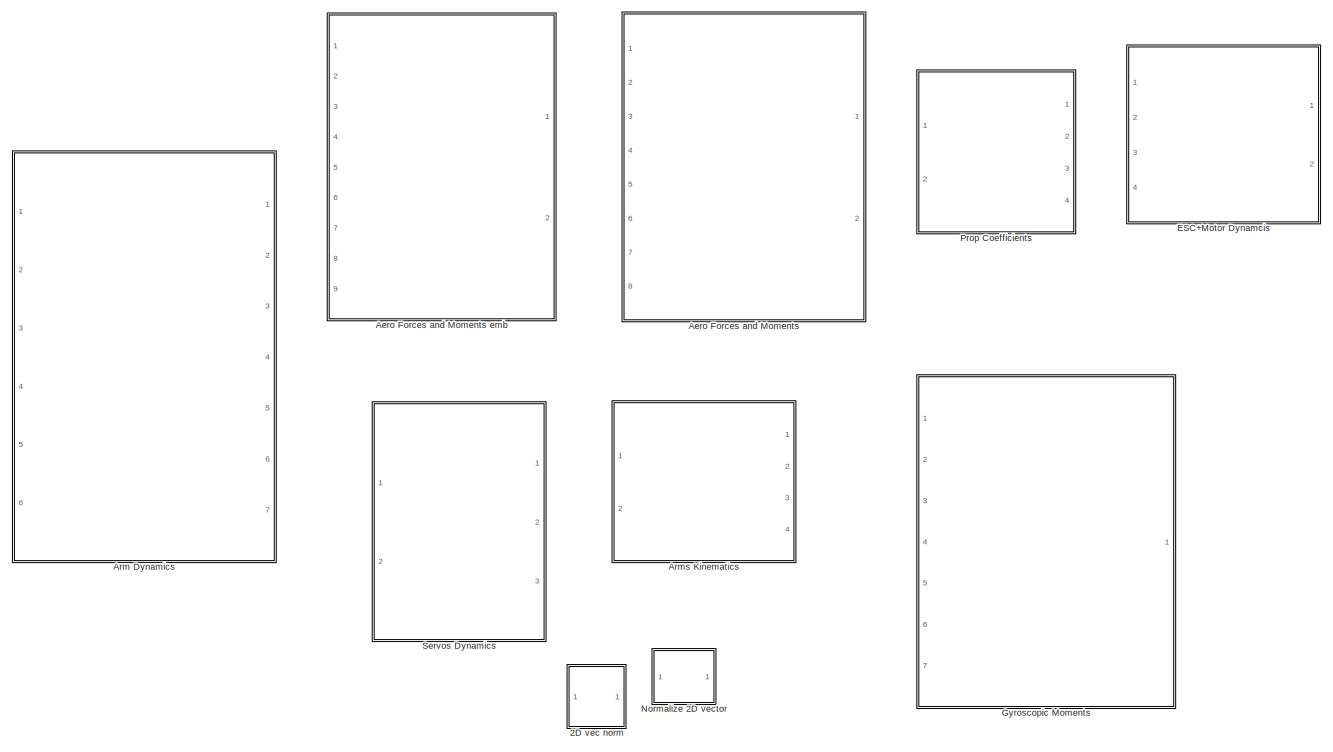
[diagram: root canvas - part 1/2, full width, top band]
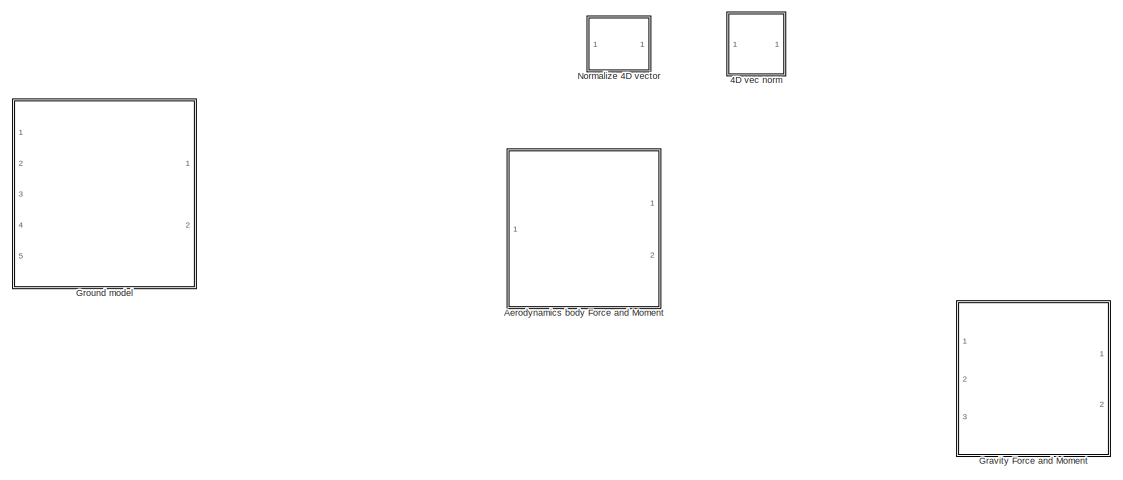
[diagram: root canvas - part 2/2, full width, bottom band]
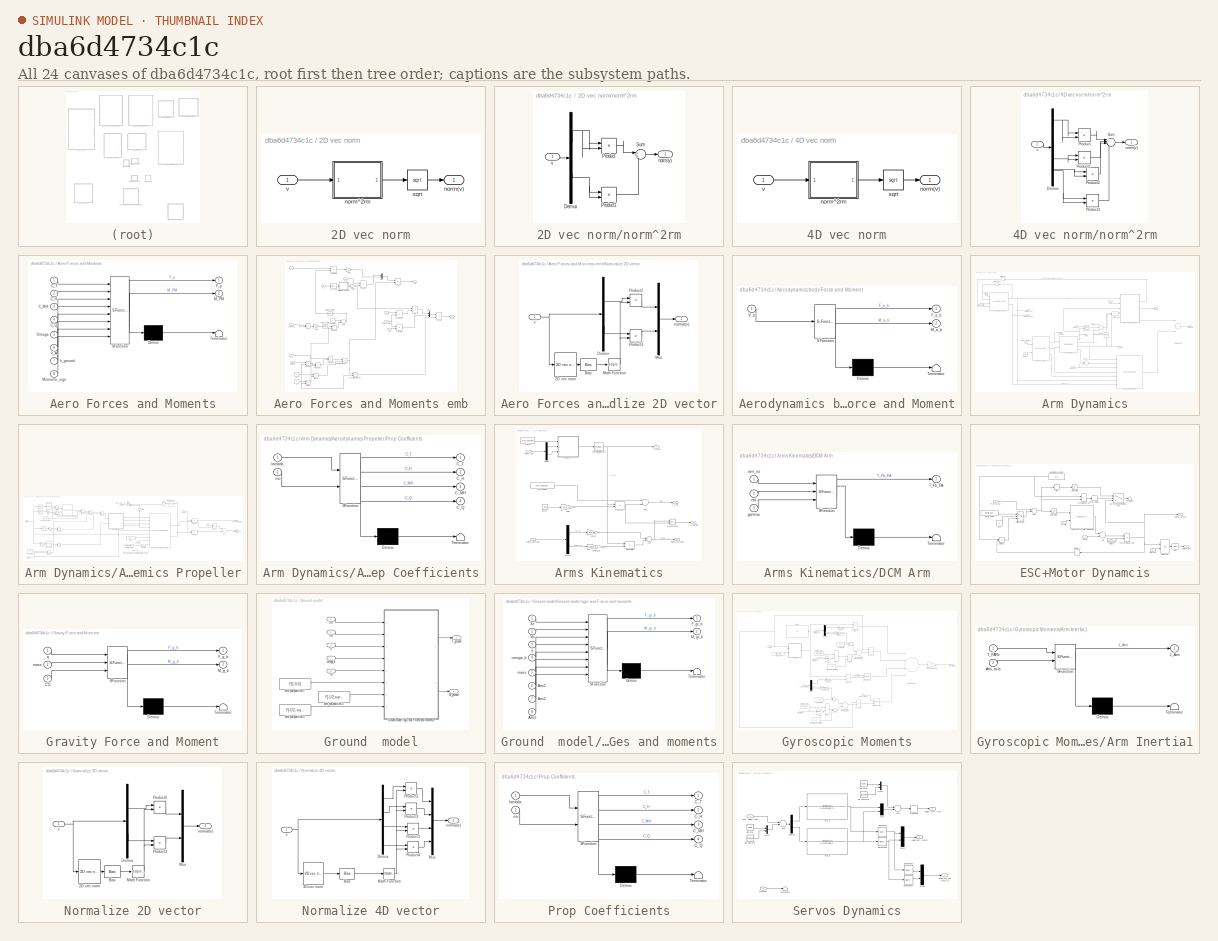
[diagram: thumbnail index - all 24 canvases of the model, root first then tree order]
MODEL slx_dba6d4734c1c
KIND library
CONFIG AbsTol = auto
CONFIG FixedStep = auto
CONFIG MaxStep = auto
CONFIG MinStep = auto
CONFIG RelTol = 1e-3
CONFIG SampleTimeConstraint = Unconstrained
CONFIG Solver = ode45
CONFIG SolverMode = SingleTasking
CONFIG SolverName = ode45
CONFIG StartTime = 0.0
CONFIG StopTime = 10.0
BLOCK [SubSystem] 2D vec norm
  Ports = [1, 1]
  RequestExecContextInheritance = off
  TreatAsAtomicUnit = on
BLOCK [Outport] 2D vec norm/norm(v)
  IconDisplay = Port number
BLOCK [SubSystem] 2D vec norm/norm^2rm
  Ports = [1, 1]
  RequestExecContextInheritance = off
  TreatAsAtomicUnit = on
BLOCK [Demux] 2D vec norm/norm^2rm/Demux
  DisplayOption = bar
  Outputs = 2
  Ports = [1, 2]
BLOCK [Product] 2D vec norm/norm^2rm/Product
  InputSameDT = off
  OutDataTypeStr = Inherit: Inherit via internal rule
  Ports = [2, 1]
  RndMeth = Floor
  SaturateOnIntegerOverflow = off
BLOCK [Product] 2D vec norm/norm^2rm/Product1
  InputSameDT = off
  OutDataTypeStr = Inherit: Inherit via internal rule
  Ports = [2, 1]
  RndMeth = Floor
  SaturateOnIntegerOverflow = off
BLOCK [Sum] 2D vec norm/norm^2rm/Sum
  IconShape = round
  InputSameDT = off
  Inputs = 2
  OutDataTypeStr = Inherit: Inherit via internal rule
  Ports = [2, 1]
  SaturateOnIntegerOverflow = off
BLOCK [Outport] 2D vec norm/norm^2rm/norm(v)
  IconDisplay = Port number
BLOCK [Inport] 2D vec norm/norm^2rm/v
  IconDisplay = Port number
BLOCK [Sqrt] 2D vec norm/sqrt
  AlgorithmType = Newton-Raphson
BLOCK [Inport] 2D vec norm/v
  IconDisplay = Port number
BLOCK [SubSystem] 4D vec norm
  Ports = [1, 1]
  RequestExecContextInheritance = off
  TreatAsAtomicUnit = on
BLOCK [Outport] 4D vec norm/norm(v)
  IconDisplay = Port number
BLOCK [SubSystem] 4D vec norm/norm^2rm
  Ports = [1, 1]
  RequestExecContextInheritance = off
  TreatAsAtomicUnit = on
BLOCK [Demux] 4D vec norm/norm^2rm/Demux
  DisplayOption = bar
  Ports = [1, 4]
BLOCK [Product] 4D vec norm/norm^2rm/Product
  InputSameDT = off
  OutDataTypeStr = Inherit: Inherit via internal rule
  Ports = [2, 1]
  RndMeth = Floor
  SaturateOnIntegerOverflow = off
BLOCK [Product] 4D vec norm/norm^2rm/Product1
  InputSameDT = off
  OutDataTypeStr = Inherit: Inherit via internal rule
  Ports = [2, 1]
  RndMeth = Floor
  SaturateOnIntegerOverflow = off
BLOCK [Product] 4D vec norm/norm^2rm/Product2
  InputSameDT = off
  OutDataTypeStr = Inherit: Inherit via internal rule
  Ports = [2, 1]
  RndMeth = Floor
  SaturateOnIntegerOverflow = off
BLOCK [Product] 4D vec norm/norm^2rm/Product3
  InputSameDT = off
  OutDataTypeStr = Inherit: Inherit via internal rule
  Ports = [2, 1]
  RndMeth = Floor
  SaturateOnIntegerOverflow = off
BLOCK [Sum] 4D vec norm/norm^2rm/Sum
  IconShape = round
  InputSameDT = off
  Inputs = 4
  OutDataTypeStr = Inherit: Inherit via internal rule
  Ports = [4, 1]
  SaturateOnIntegerOverflow = off
BLOCK [Outport] 4D vec norm/norm^2rm/norm(v)
  IconDisplay = Port number
BLOCK [Inport] 4D vec norm/norm^2rm/v
  IconDisplay = Port number
BLOCK [Sqrt] 4D vec norm/sqrt
  AlgorithmType = Newton-Raphson
BLOCK [Inport] 4D vec norm/v
  IconDisplay = Port number
BLOCK [SubSystem] Aero Forces and Moments
  ErrorFcn = Stateflow.Translate.translate
  PermitHierarchicalResolution = ExplicitOnly
  Ports = [8, 2]
  RequestExecContextInheritance = off
  SFBlockType = MATLAB Function
  TreatAsAtomicUnit = on
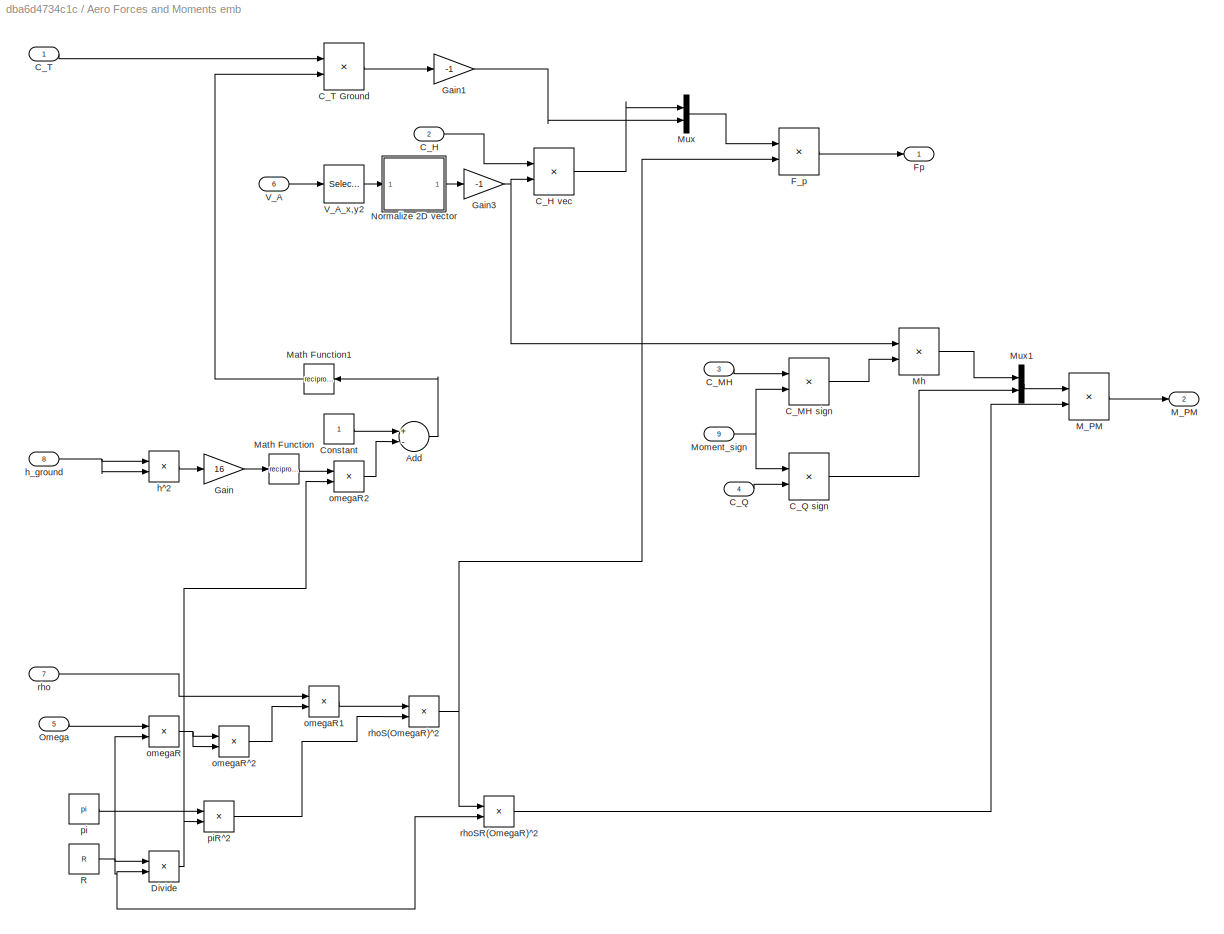
BLOCK [SubSystem] Aero Forces and Moments emb
  Ports = [9, 2]
  RequestExecContextInheritance = off
  TreatAsAtomicUnit = on
BLOCK [Sum] Aero Forces and Moments emb/Add
  InputSameDT = off
  Inputs = +-
  OutDataTypeStr = Inherit: Inherit via internal rule
  Ports = [2, 1]
  SaturateOnIntegerOverflow = off
BLOCK [Inport] Aero Forces and Moments emb/C_H
  IconDisplay = Port number
  Port = 2
BLOCK [Product] Aero Forces and Moments emb/C_H vec
  InputSameDT = off
  Inputs = **
  OutDataTypeStr = Inherit: Inherit via internal rule
  Ports = [2, 1]
  RndMeth = Floor
  SaturateOnIntegerOverflow = off
BLOCK [Inport] Aero Forces and Moments emb/C_MH
  IconDisplay = Port number
  Port = 3
BLOCK [Product] Aero Forces and Moments emb/C_MH sign
  InputSameDT = off
  Inputs = **
  OutDataTypeStr = Inherit: Inherit via internal rule
  Ports = [2, 1]
  RndMeth = Floor
  SaturateOnIntegerOverflow = off
BLOCK [Inport] Aero Forces and Moments emb/C_Q
  IconDisplay = Port number
  Port = 4
BLOCK [Product] Aero Forces and Moments emb/C_Q sign
  InputSameDT = off
  Inputs = **
  OutDataTypeStr = Inherit: Inherit via internal rule
  Ports = [2, 1]
  RndMeth = Floor
  SaturateOnIntegerOverflow = off
BLOCK [Inport] Aero Forces and Moments emb/C_T
  IconDisplay = Port number
BLOCK [Product] Aero Forces and Moments emb/C_T Ground
  InputSameDT = off
  Inputs = **
  OutDataTypeStr = Inherit: Inherit via internal rule
  Ports = [2, 1]
  RndMeth = Floor
  SaturateOnIntegerOverflow = off
BLOCK [Constant] Aero Forces and Moments emb/Constant
BLOCK [Product] Aero Forces and Moments emb/Divide
  InputSameDT = off
  Inputs = **
  OutDataTypeStr = Inherit: Inherit via internal rule
  Ports = [2, 1]
  RndMeth = Floor
  SaturateOnIntegerOverflow = off
BLOCK [Product] Aero Forces and Moments emb/F_p
  InputSameDT = off
  Inputs = **
  OutDataTypeStr = Inherit: Inherit via internal rule
  Ports = [2, 1]
  RndMeth = Floor
  SaturateOnIntegerOverflow = off
BLOCK [Outport] Aero Forces and Moments emb/Fp
  IconDisplay = Port number
BLOCK [Gain] Aero Forces and Moments emb/Gain
  Gain = 16
  OutDataTypeStr = Inherit: Inherit via internal rule
  ParamDataTypeStr = Inherit: Inherit via internal rule
  SaturateOnIntegerOverflow = off
BLOCK [Gain] Aero Forces and Moments emb/Gain1
  Gain = -1
  OutDataTypeStr = Inherit: Inherit via internal rule
  ParamDataTypeStr = Inherit: Inherit via internal rule
  SaturateOnIntegerOverflow = off
BLOCK [Gain] Aero Forces and Moments emb/Gain3
  Gain = -1
  OutDataTypeStr = Inherit: Inherit via internal rule
  ParamDataTypeStr = Inherit: Inherit via internal rule
  SaturateOnIntegerOverflow = off
BLOCK [Product] Aero Forces and Moments emb/M_PM
  InputSameDT = off
  Inputs = **
  OutDataTypeStr = Inherit: Inherit via internal rule
  Ports = [2, 1]
  RndMeth = Floor
  SaturateOnIntegerOverflow = off
BLOCK [Outport] Aero Forces and Moments emb/M_PM 
  IconDisplay = Port number
  Port = 2
BLOCK [Math] Aero Forces and Moments emb/Math Function
  Operator = reciprocal
  Ports = [1, 1]
BLOCK [Math] Aero Forces and Moments emb/Math Function1
  Operator = reciprocal
  Ports = [1, 1]
BLOCK [Product] Aero Forces and Moments emb/Mh
  InputSameDT = off
  Inputs = **
  OutDataTypeStr = Inherit: Inherit via internal rule
  Ports = [2, 1]
  RndMeth = Floor
  SaturateOnIntegerOverflow = off
BLOCK [Inport] Aero Forces and Moments emb/Moment_sign
  IconDisplay = Port number
  Port = 9
BLOCK [Mux] Aero Forces and Moments emb/Mux
  DisplayOption = bar
  Inputs = [2,1]
  Ports = [2, 1]
BLOCK [Mux] Aero Forces and Moments emb/Mux1
  DisplayOption = bar
  Inputs = [2,1]
  Ports = [2, 1]
BLOCK [SubSystem] Aero Forces and Moments emb/Normalize 2D vector
  Ports = [1, 1]
  RequestExecContextInheritance = off
  TreatAsAtomicUnit = on
BLOCK [Reference] Aero Forces and Moments emb/Normalize 2D vector/2D vec norm  REF=XXCopter/2D vec norm
  Ports = [1, 1]
  SourceBlock = XXCopter/2D vec norm
  SourceType = SubSystem
BLOCK [Bias] Aero Forces and Moments emb/Normalize 2D vector/Bias
  Bias = eps
  SaturateOnIntegerOverflow = off
BLOCK [Demux] Aero Forces and Moments emb/Normalize 2D vector/Demux
  DisplayOption = bar
  Outputs = 2
  Ports = [1, 2]
BLOCK [Math] Aero Forces and Moments emb/Normalize 2D vector/Math Function
  Operator = reciprocal
  Ports = [1, 1]
BLOCK [Mux] Aero Forces and Moments emb/Normalize 2D vector/Mux
  DisplayOption = bar
  Inputs = 2
  Ports = [2, 1]
BLOCK [Product] Aero Forces and Moments emb/Normalize 2D vector/Product2
  InputSameDT = off
  Inputs = **
  OutDataTypeStr = Inherit: Inherit via internal rule
  Ports = [2, 1]
  RndMeth = Floor
  SaturateOnIntegerOverflow = off
BLOCK [Product] Aero Forces and Moments emb/Normalize 2D vector/Product3
  InputSameDT = off
  Inputs = **
  OutDataTypeStr = Inherit: Inherit via internal rule
  Ports = [2, 1]
  RndMeth = Floor
  SaturateOnIntegerOverflow = off
BLOCK [Outport] Aero Forces and Moments emb/Normalize 2D vector/normal(v)
  IconDisplay = Port number
BLOCK [Inport] Aero Forces and Moments emb/Normalize 2D vector/v
  IconDisplay = Port number
BLOCK [Inport] Aero Forces and Moments emb/Omega
  IconDisplay = Port number
  Port = 5
BLOCK [Constant] Aero Forces and Moments emb/R
  Value = R
BLOCK [Inport] Aero Forces and Moments emb/V_A
  IconDisplay = Port number
  Port = 6
BLOCK [Selector] Aero Forces and Moments emb/V_A_x,y2
  IndexMode = Zero-based
  Indices = [0,1]
  InputPortWidth = 3
  Ports = [1, 1]
BLOCK [Product] Aero Forces and Moments emb/h^2
  InputSameDT = off
  Inputs = **
  OutDataTypeStr = Inherit: Inherit via internal rule
  Ports = [2, 1]
  RndMeth = Floor
  SaturateOnIntegerOverflow = off
BLOCK [Inport] Aero Forces and Moments emb/h_ground
  IconDisplay = Port number
  Port = 8
BLOCK [Product] Aero Forces and Moments emb/omegaR
  InputSameDT = off
  Inputs = **
  OutDataTypeStr = Inherit: Inherit via internal rule
  Ports = [2, 1]
  RndMeth = Floor
  SaturateOnIntegerOverflow = off
BLOCK [Product] Aero Forces and Moments emb/omegaR1
  InputSameDT = off
  Inputs = **
  OutDataTypeStr = Inherit: Inherit via internal rule
  Ports = [2, 1]
  RndMeth = Floor
  SaturateOnIntegerOverflow = off
BLOCK [Product] Aero Forces and Moments emb/omegaR2
  InputSameDT = off
  Inputs = **
  OutDataTypeStr = Inherit: Inherit via internal rule
  Ports = [2, 1]
  RndMeth = Floor
  SaturateOnIntegerOverflow = off
BLOCK [Product] Aero Forces and Moments emb/omegaR^2
  InputSameDT = off
  Inputs = **
  OutDataTypeStr = Inherit: Inherit via internal rule
  Ports = [2, 1]
  RndMeth = Floor
  SaturateOnIntegerOverflow = off
BLOCK [Constant] Aero Forces and Moments emb/pi
  Value = pi
BLOCK [Product] Aero Forces and Moments emb/piR^2
  InputSameDT = off
  Inputs = **
  OutDataTypeStr = Inherit: Inherit via internal rule
  Ports = [2, 1]
  RndMeth = Floor
  SaturateOnIntegerOverflow = off
BLOCK [Inport] Aero Forces and Moments emb/rho
  IconDisplay = Port number
  Port = 7
BLOCK [Product] Aero Forces and Moments emb/rhoS(OmegaR)^2
  InputSameDT = off
  Inputs = **
  OutDataTypeStr = Inherit: Inherit via internal rule
  Ports = [2, 1]
  RndMeth = Floor
  SaturateOnIntegerOverflow = off
BLOCK [Product] Aero Forces and Moments emb/rhoSR(OmegaR)^2
  InputSameDT = off
  Inputs = **
  OutDataTypeStr = Inherit: Inherit via internal rule
  Ports = [2, 1]
  RndMeth = Floor
  SaturateOnIntegerOverflow = off
BLOCK [Demux] Aero Forces and Moments/ Demux 
  Outputs = 1
  Ports = [1, 1]
BLOCK [S-Function] Aero Forces and Moments/ SFunction 
  FunctionName = sf_sfun
  Parameters = R,rho
  PortCounts = [8 3]
  Ports = [8, 3]
  Tag = Stateflow S-Function XXCopter 14
BLOCK [Terminator] Aero Forces and Moments/ Terminator 
BLOCK [Inport] Aero Forces and Moments/C_H
  IconDisplay = Port number
  Port = 2
BLOCK [Inport] Aero Forces and Moments/C_MH
  IconDisplay = Port number
  Port = 3
BLOCK [Inport] Aero Forces and Moments/C_Q
  IconDisplay = Port number
  Port = 4
BLOCK [Inport] Aero Forces and Moments/C_T
  IconDisplay = Port number
BLOCK [Outport] Aero Forces and Moments/F_p
  IconDisplay = Port number
BLOCK [Outport] Aero Forces and Moments/M_PM
  IconDisplay = Port number
  Port = 2
BLOCK [Inport] Aero Forces and Moments/Moments_sign
  IconDisplay = Port number
  Port = 8
BLOCK [Inport] Aero Forces and Moments/Omega
  IconDisplay = Port number
  Port = 5
BLOCK [Inport] Aero Forces and Moments/V_A
  IconDisplay = Port number
  Port = 6
BLOCK [Inport] Aero Forces and Moments/h_ground
  IconDisplay = Port number
  Port = 7
BLOCK [SubSystem] Aerodynamics body Force and Moment
  ErrorFcn = Stateflow.Translate.translate
  PermitHierarchicalResolution = ExplicitOnly
  Ports = [1, 2]
  RequestExecContextInheritance = off
  SFBlockType = MATLAB Function
  TreatAsAtomicUnit = on
BLOCK [Demux] Aerodynamics body Force and Moment/ Demux 
  Outputs = 1
  Ports = [1, 1]
BLOCK [S-Function] Aerodynamics body Force and Moment/ SFunction 
  FunctionName = sf_sfun
  Parameters = A_x,A_y,A_z,C_x,C_y,C_z,rho
  PortCounts = [1 3]
  Ports = [1, 3]
  Tag = Stateflow S-Function XXCopter 5
BLOCK [Terminator] Aerodynamics body Force and Moment/ Terminator 
BLOCK [Outport] Aerodynamics body Force and Moment/F_a_b
  IconDisplay = Port number
BLOCK [Outport] Aerodynamics body Force and Moment/M_a_b
  IconDisplay = Port number
  Port = 2
BLOCK [Inport] Aerodynamics body Force and Moment/V_b
  IconDisplay = Port number
BLOCK [SubSystem] Arm Dynamics
  Ports = [6, 7]
  RequestExecContextInheritance = off
  TreatAsAtomicUnit = on
BLOCK [SubSystem] Arm Dynamics/Aerodynamics Propeller
  MinAlgLoopOccurrences = on
  Ports = [5, 3]
  RequestExecContextInheritance = off
  TreatAsAtomicUnit = on
BLOCK [Reference] Arm Dynamics/Aerodynamics Propeller/2D vec norm  REF=XXCopter/2D vec norm
  Ports = [1, 1]
  SourceBlock = XXCopter/2D vec norm
  SourceType = SubSystem
BLOCK [Reference] Arm Dynamics/Aerodynamics Propeller/2D vec norm1  REF=XXCopter/2D vec norm
  Ports = [1, 1]
  SourceBlock = XXCopter/2D vec norm
  SourceType = SubSystem
BLOCK [Abs] Arm Dynamics/Aerodynamics Propeller/Abs2
  SaturateOnIntegerOverflow = off
BLOCK [Sum] Arm Dynamics/Aerodynamics Propeller/Add
  InputSameDT = off
  OutDataTypeStr = Inherit: Inherit via internal rule
  Ports = [2, 1]
  SaturateOnIntegerOverflow = off
BLOCK [Reference] Arm Dynamics/Aerodynamics Propeller/Aero Forces and Moments emb  REF=XXCopter/Aero Forces and Moments emb
  Ports = [9, 2]
  SourceBlock = XXCopter/Aero Forces and Moments emb
  SourceType = SubSystem
BLOCK [Lookup_n-D] Arm Dynamics/Aerodynamics Propeller/Dimensionless AB induced Vel Map
  BreakpointsForDimension1 = Vx_adim
  BreakpointsForDimension2 = Vz_adim
  BreakpointsForDimension3 = [5, 7]
  Ports = [2, 1]
  RemoveProtectionInput = on
  RndMeth = Simplest
  Table = v_i_adim
BLOCK [Product] Arm Dynamics/Aerodynamics Propeller/Divide
  InputSameDT = off
  Inputs = **
  OutDataTypeStr = Inherit: Inherit via internal rule
  Ports = [2, 1]
  RndMeth = Floor
  SaturateOnIntegerOverflow = off
BLOCK [Product] Arm Dynamics/Aerodynamics Propeller/F prop @ Fb
  InputSameDT = off
  Multiplication = Matrix(*)
  OutDataTypeStr = Inherit: Inherit via internal rule
  Ports = [2, 1]
  RndMeth = Floor
  SaturateOnIntegerOverflow = off
BLOCK [Outport] Arm Dynamics/Aerodynamics Propeller/Forces_prop @Fb
  IconDisplay = Port number
  Port = 2
BLOCK [Gain] Arm Dynamics/Aerodynamics Propeller/Gain
  Gain = -1
  OutDataTypeStr = Inherit: Inherit via internal rule
  ParamDataTypeStr = Inherit: Inherit via internal rule
  SaturateOnIntegerOverflow = off
BLOCK [Gain] Arm Dynamics/Aerodynamics Propeller/Gain1
  Gain = -1
  OutDataTypeStr = Inherit: Inherit via internal rule
  ParamDataTypeStr = Inherit: Inherit via internal rule
  SaturateOnIntegerOverflow = off
BLOCK [Constant] Arm Dynamics/Aerodynamics Propeller/Induced hover Vel
  Value = v_i0
BLOCK [Product] Arm Dynamics/Aerodynamics Propeller/M prop @Fb
  InputSameDT = off
  Multiplication = Matrix(*)
  OutDataTypeStr = Inherit: Inherit via internal rule
  Ports = [2, 1]
  RndMeth = Floor
  SaturateOnIntegerOverflow = off
BLOCK [Reference] Arm Dynamics/Aerodynamics Propeller/M_PAF  REF=vrlib/Utilities/Cross Product
  Ports = [2, 1]
  SourceBlock = vrlib/Utilities/Cross Product
  SourceType = Cross Product
BLOCK [Outport] Arm Dynamics/Aerodynamics Propeller/Moments_prop @Fb
  IconDisplay = Port number
  Port = 3
BLOCK [Inport] Arm Dynamics/Aerodynamics Propeller/Omega
  IconDisplay = Port number
BLOCK [Product] Arm Dynamics/Aerodynamics Propeller/Omega*R
  InputSameDT = off
  Inputs = **
  OutDataTypeStr = Inherit: Inherit via internal rule
  Ports = [2, 1]
  RndMeth = Floor
  SaturateOnIntegerOverflow = off
BLOCK [SubSystem] Arm Dynamics/Aerodynamics Propeller/Prop Coefficients
  ErrorFcn = Stateflow.Translate.translate
  PermitHierarchicalResolution = ExplicitOnly
  Ports = [2, 4]
  RequestExecContextInheritance = off
  SFBlockType = MATLAB Function
  TreatAsAtomicUnit = on
BLOCK [Demux] Arm Dynamics/Aerodynamics Propeller/Prop Coefficients/ Demux 
  Outputs = 1
  Ports = [1, 1]
BLOCK [S-Function] Arm Dynamics/Aerodynamics Propeller/Prop Coefficients/ SFunction 
  FunctionName = sf_sfun
  Parameters = C_d0,a,sigma,theta_0,theta_1
  PortCounts = [2 5]
  Ports = [2, 5]
  Tag = Stateflow S-Function XXCopter 2
BLOCK [Terminator] Arm Dynamics/Aerodynamics Propeller/Prop Coefficients/ Terminator 
BLOCK [Outport] Arm Dynamics/Aerodynamics Propeller/Prop Coefficients/C_H
  IconDisplay = Port number
  Port = 2
BLOCK [Outport] Arm Dynamics/Aerodynamics Propeller/Prop Coefficients/C_MH
  IconDisplay = Port number
  Port = 3
BLOCK [Outport] Arm Dynamics/Aerodynamics Propeller/Prop Coefficients/C_Q
  IconDisplay = Port number
  Port = 4
BLOCK [Outport] Arm Dynamics/Aerodynamics Propeller/Prop Coefficients/C_T
  IconDisplay = Port number
BLOCK [Inport] Arm Dynamics/Aerodynamics Propeller/Prop Coefficients/lambda
  IconDisplay = Port number
BLOCK [Inport] Arm Dynamics/Aerodynamics Propeller/Prop Coefficients/mu
  IconDisplay = Port number
  Port = 2
BLOCK [Outport] Arm Dynamics/Aerodynamics Propeller/Prop_Torque_out
  IconDisplay = Port number
BLOCK [Selector] Arm Dynamics/Aerodynamics Propeller/Propeller Torque1
  IndexMode = Zero-based
  Indices = 2
  InputPortWidth = 3
  Ports = [1, 1]
BLOCK [Constant] Arm Dynamics/Aerodynamics Propeller/Radius Prop
  Value = R
BLOCK [Gain] Arm Dynamics/Aerodynamics Propeller/Reaction!
  Gain = -1
  OutDataTypeStr = Inherit: Inherit via internal rule
  ParamDataTypeStr = Inherit: Inherit via internal rule
  SaturateOnIntegerOverflow = off
BLOCK [Constant] Arm Dynamics/Aerodynamics Propeller/Rotation_sign
  Value = Rot_sign
BLOCK [Signum] Arm Dynamics/Aerodynamics Propeller/Sign
BLOCK [Inport] Arm Dynamics/Aerodynamics Propeller/T_FaFb
  IconDisplay = Port number
  Port = 5
BLOCK [Inport] Arm Dynamics/Aerodynamics Propeller/V^A
  IconDisplay = Port number
  Port = 4
BLOCK [Selector] Arm Dynamics/Aerodynamics Propeller/V_A_x
  Indices = [1 2]
  InputPortWidth = 3
  Ports = [1, 1]
BLOCK [Selector] Arm Dynamics/Aerodynamics Propeller/V_A_x,y
  Indices = [1 2]
  InputPortWidth = 3
  Ports = [1, 1]
BLOCK [Selector] Arm Dynamics/Aerodynamics Propeller/V_A_x,y1
  Indices = [3]
  InputPortWidth = 3
  Ports = [1, 1]
BLOCK [Selector] Arm Dynamics/Aerodynamics Propeller/V_A_z
  Indices = 3
  InputPortWidth = 3
  Ports = [1, 1]
BLOCK [Product] Arm Dynamics/Aerodynamics Propeller/Vx dimless
  InputSameDT = off
  Inputs = */
  OutDataTypeStr = Inherit: Inherit via internal rule
  Ports = [2, 1]
  RndMeth = Floor
  SaturateOnIntegerOverflow = off
BLOCK [Product] Arm Dynamics/Aerodynamics Propeller/Vz dimless1
  InputSameDT = off
  Inputs = */
  OutDataTypeStr = Inherit: Inherit via internal rule
  Ports = [2, 1]
  RndMeth = Floor
  SaturateOnIntegerOverflow = off
BLOCK [Inport] Arm Dynamics/Aerodynamics Propeller/h_ground
  IconDisplay = Port number
  Port = 2
BLOCK [Sum] Arm Dynamics/Aerodynamics Propeller/lambda
  InputSameDT = off
  OutDataTypeStr = Inherit: Inherit via internal rule
  Ports = [2, 1]
  SaturateOnIntegerOverflow = off
BLOCK [Product] Arm Dynamics/Aerodynamics Propeller/lambdaZ
  InputSameDT = off
  Inputs = */
  OutDataTypeStr = Inherit: Inherit via internal rule
  Ports = [2, 1]
  RndMeth = Floor
  SaturateOnIntegerOverflow = off
BLOCK [Product] Arm Dynamics/Aerodynamics Propeller/lambda_i
  InputSameDT = off
  Inputs = */
  OutDataTypeStr = Inherit: Inherit via internal rule
  Ports = [2, 1]
  RndMeth = Floor
  SaturateOnIntegerOverflow = off
BLOCK [Product] Arm Dynamics/Aerodynamics Propeller/mu
  InputSameDT = off
  Inputs = */
  OutDataTypeStr = Inherit: Inherit via internal rule
  Ports = [2, 1]
  RndMeth = Floor
  SaturateOnIntegerOverflow = off
BLOCK [Inport] Arm Dynamics/Aerodynamics Propeller/r_p
  IconDisplay = Port number
  Port = 3
BLOCK [Constant] Arm Dynamics/Aerodynamics Propeller/rho
  Value = rho
BLOCK [Product] Arm Dynamics/Aerodynamics Propeller/v_i dimension
  InputSameDT = off
  Inputs = **
  OutDataTypeStr = Inherit: Inherit via internal rule
  Ports = [2, 1]
  RndMeth = Floor
  SaturateOnIntegerOverflow = off
BLOCK [Outport] Arm Dynamics/Angles (rad)
  IconDisplay = Port number
  Port = 6
BLOCK [Reference] Arm Dynamics/Arms Kinematics  REF=XXCopter/Arms Kinematics
  Arm_hub_position = arm_hub_pos
  Arm_number = arm_num
  Ports = [2, 4]
  SourceBlock = XXCopter/Arms Kinematics
  eta_dir = eta_dir
  gamma_dir = gamma_dir
  h_prop = h
BLOCK [Inport] Arm Dynamics/Comm Angles (rad)
  IconDisplay = Port number
  Port = 2
BLOCK [Reference] Arm Dynamics/Cross Product  REF=vrlib/Utilities/Cross Product
  Ports = [2, 1]
  SourceBlock = vrlib/Utilities/Cross Product
  SourceType = Cross Product
BLOCK [Reference] Arm Dynamics/ESC+Motor Dynamcis  REF=XXCopter/ESC+Motor Dynamcis
  Inertia_swithc_var = Motor+Prop
  J_T = J_T
  Ports = [4, 2]
  SourceBlock = XXCopter/ESC+Motor Dynamcis
  tau = tau
BLOCK [Product] Arm Dynamics/F_b->F_A
  InputSameDT = off
  Multiplication = Matrix(*)
  OutDataTypeStr = Inherit: Inherit via internal rule
  Ports = [2, 1]
  RndMeth = Floor
  SaturateOnIntegerOverflow = off
BLOCK [Outport] Arm Dynamics/Forces
  IconDisplay = Port number
BLOCK [Ground] Arm Dynamics/Ground
BLOCK [Reference] Arm Dynamics/Gyroscopic Moments  REF=XXCopter/Gyroscopic Moments
  Arm_axis = Arm_axis
  J_FA = J_FA
  J_T = J_T
  Ports = [7, 1]
  Rot_sign = Rot_sign
  SourceBlock = XXCopter/Gyroscopic Moments
  eta_dir = eta_dir
  gamma_dir = gamma_dir
BLOCK [Memory] Arm Dynamics/Initial_torque
  X0 = Torq_ini
BLOCK [Outport] Arm Dynamics/Moments
  IconDisplay = Port number
  Port = 2
BLOCK [Inport] Arm Dynamics/Omega_Initial
  IconDisplay = Port number
  Port = 3
BLOCK [Outport] Arm Dynamics/Omega_dot_out
  IconDisplay = Port number
  Port = 4
BLOCK [Outport] Arm Dynamics/Omega_out
  IconDisplay = Port number
  Port = 3
BLOCK [PermuteDimensions] Arm Dynamics/Permute Dimensions
BLOCK [Reference] Arm Dynamics/Servos Dynamics  REF=XXCopter/Servos Dynamics
  Ports = [2, 3]
  SourceBlock = XXCopter/Servos Dynamics
  derv_param = c
  init_eta = init_eta
  init_gamma = init_gamma
  omega_n = omega_n
  xi = xi
BLOCK [Outport] Arm Dynamics/T_FaFb
  IconDisplay = Port number
  Port = 5
BLOCK [Inport] Arm Dynamics/Throttle [0-1]
  IconDisplay = Port number
BLOCK [Sum] Arm Dynamics/Total moments
  InputSameDT = off
  OutDataTypeStr = Inherit: Inherit via internal rule
  Ports = [2, 1]
  SaturateOnIntegerOverflow = off
BLOCK [Sum] Arm Dynamics/V^A (m//s)
  InputSameDT = off
  Inputs = +++
  OutDataTypeStr = Inherit: Inherit via internal rule
  Ports = [3, 1]
  SaturateOnIntegerOverflow = off
BLOCK [Inport] Arm Dynamics/V_b
  IconDisplay = Port number
  Port = 6
BLOCK [Inport] Arm Dynamics/h_ground
  IconDisplay = Port number
  Port = 4
BLOCK [Memory] Arm Dynamics/initial_omega
  X0 = Omega_ini
BLOCK [Sum] Arm Dynamics/omega_A
  InputSameDT = off
  OutDataTypeStr = Inherit: Inherit via internal rule
  Ports = [2, 1]
  SaturateOnIntegerOverflow = off
BLOCK [Inport] Arm Dynamics/omega_b
  IconDisplay = Port number
  Port = 5
BLOCK [InportShadow] Arm Dynamics/omega_b1
  IconDisplay = Port number
  Port = 5
BLOCK [Outport] Arm Dynamics/r_p
  IconDisplay = Port number
  Port = 7
BLOCK [SubSystem] Arms Kinematics
  Ports = [2, 4]
  RequestExecContextInheritance = off
  TreatAsAtomicUnit = on
BLOCK [Sum] Arms Kinematics/Add
  InputSameDT = off
  OutDataTypeStr = Inherit: Inherit via internal rule
  Ports = [2, 1]
  SaturateOnIntegerOverflow = off
BLOCK [Sum] Arms Kinematics/Add3
  InputSameDT = off
  OutDataTypeStr = Inherit: Inherit via internal rule
  Ports = [2, 1]
  SaturateOnIntegerOverflow = off
BLOCK [Inport] Arms Kinematics/Angles (rad)
  IconDisplay = Port number
BLOCK [Inport] Arms Kinematics/Angles_dot (rad//s)
  IconDisplay = Port number
  Port = 2
BLOCK [Constant] Arms Kinematics/Arm_no
  Value = Arm_number
BLOCK [Reference] Arms Kinematics/Cross Product  REF=vrlib/Utilities/Cross Product
  Ports = [2, 1]
  SourceBlock = vrlib/Utilities/Cross Product
  SourceType = Cross Product
BLOCK [SubSystem] Arms Kinematics/DCM Arm
  ErrorFcn = Stateflow.Translate.translate
  PermitHierarchicalResolution = ExplicitOnly
  Ports = [3, 1]
  RequestExecContextInheritance = off
  SFBlockType = MATLAB Function
  TreatAsAtomicUnit = on
BLOCK [Demux] Arms Kinematics/DCM Arm/ Demux 
  Outputs = 1
  Ports = [1, 1]
BLOCK [S-Function] Arms Kinematics/DCM Arm/ SFunction 
  FunctionName = sf_sfun
  PortCounts = [3 2]
  Ports = [3, 2]
  Tag = Stateflow S-Function XXCopter 9
BLOCK [Terminator] Arms Kinematics/DCM Arm/ Terminator 
BLOCK [Outport] Arms Kinematics/DCM Arm/T_Fb_FA
  IconDisplay = Port number
BLOCK [Inport] Arms Kinematics/DCM Arm/arm_no
  IconDisplay = Port number
BLOCK [Inport] Arms Kinematics/DCM Arm/eta
  IconDisplay = Port number
  Port = 2
BLOCK [Inport] Arms Kinematics/DCM Arm/gamma
  IconDisplay = Port number
  Port = 3
BLOCK [Demux] Arms Kinematics/Demux
  DisplayOption = bar
  Outputs = 2
  Ports = [1, 2]
BLOCK [Demux] Arms Kinematics/Demux3
  DisplayOption = bar
  Outputs = 2
  Ports = [1, 2]
BLOCK [Product] Arms Kinematics/Fa->Fb
  InputSameDT = off
  Multiplication = Matrix(*)
  OutDataTypeStr = Inherit: Inherit via internal rule
  Ports = [2, 1]
  RndMeth = Floor
  SaturateOnIntegerOverflow = off
BLOCK [Gain] Arms Kinematics/Gain7
  Gain = [0;0;-1]
  OutDataTypeStr = Inherit: Inherit via internal rule
  ParamDataTypeStr = Inherit: Inherit via internal rule
  SaturateOnIntegerOverflow = off
BLOCK [Constant] Arms Kinematics/Hub_position
  Value = Arm_hub_position
BLOCK [Product] Arms Kinematics/Matrix Multiply
  InputSameDT = off
  Multiplication = Matrix(*)
  OutDataTypeStr = Inherit: Inherit via internal rule
  Ports = [2, 1]
  RndMeth = Floor
  SaturateOnIntegerOverflow = off
BLOCK [PermuteDimensions] Arms Kinematics/Permute Dimensions
BLOCK [Outport] Arms Kinematics/T_F_a,Fb
  IconDisplay = Port number
  Port = 3
BLOCK [Gain] Arms Kinematics/eta_dir
  Gain = eta_dir
  OutDataTypeStr = Inherit: Inherit via internal rule
  ParamDataTypeStr = Inherit: Inherit via internal rule
  SaturateOnIntegerOverflow = off
BLOCK [Gain] Arms Kinematics/gamma_dir
  Gain = gamma_dir
  OutDataTypeStr = Inherit: Inherit via internal rule
  ParamDataTypeStr = Inherit: Inherit via internal rule
  SaturateOnIntegerOverflow = off
BLOCK [Constant] Arms Kinematics/h arm
  Value = h_prop
BLOCK [Outport] Arms Kinematics/omega_Ab (rad//s)
  IconDisplay = Port number
  Port = 4
BLOCK [Outport] Arms Kinematics/r_p (m)
  IconDisplay = Port number
BLOCK [Outport] Arms Kinematics/r_p_dot (m//s)
  IconDisplay = Port number
  Port = 2
BLOCK [SubSystem] ESC+Motor Dynamcis
  Ports = [4, 2]
  RequestExecContextInheritance = off
  TreatAsAtomicUnit = on
BLOCK [Lookup_n-D] ESC+Motor Dynamcis/2-D Torque-Throttle-Omega Map
  BreakpointsForDimension1 = Torque_TTO(:,1)
  BreakpointsForDimension2 = Throtle_TTO(1,:)
  DiagnosticForOutOfRangeInput = Warning
  ExtrapMethod = Clip
  Ports = [2, 1]
  RemoveProtectionInput = on
  RndMeth = Simplest
  Table = Omega_TTO
BLOCK [Sum] ESC+Motor Dynamcis/Add
  InputSameDT = off
  Inputs = +-
  OutDataTypeStr = Inherit: Inherit via internal rule
  Ports = [2, 1]
  SaturateOnIntegerOverflow = off
BLOCK [Sum] ESC+Motor Dynamcis/Add1
  InputSameDT = off
  OutDataTypeStr = Inherit: Inherit via internal rule
  Ports = [2, 1]
  SaturateOnIntegerOverflow = off
BLOCK [Bias] ESC+Motor Dynamcis/Bias
  Bias = eps
  SaturateOnIntegerOverflow = off
BLOCK [MultiPortSwitch] ESC+Motor Dynamcis/Correspondetn Omega_dot
  DataPortOrder = Zero-based contiguous
  InputSameDT = off
  Inputs = 2
  Ports = [3, 1]
  SaturateOnIntegerOverflow = off
BLOCK [Product] ESC+Motor Dynamcis/Divide1
  InputSameDT = off
  Inputs = **
  OutDataTypeStr = Inherit: Inherit via internal rule
  Ports = [2, 1]
  RndMeth = Floor
  SaturateOnIntegerOverflow = off
BLOCK [Product] ESC+Motor Dynamcis/Forced Omega_dot
  InputSameDT = off
  Inputs = */
  OutDataTypeStr = Inherit: Inherit via internal rule
  Ports = [2, 1]
  RndMeth = Floor
  SaturateOnIntegerOverflow = off
BLOCK [Product] ESC+Motor Dynamcis/Free Omega_dot
  InputSameDT = off
  Inputs = /*
  OutDataTypeStr = Inherit: Inherit via internal rule
  Ports = [2, 1]
  RndMeth = Floor
  SaturateOnIntegerOverflow = off
BLOCK [Constant] ESC+Motor Dynamcis/Inertia of prop+motor
  Value = J_T
BLOCK [Inport] ESC+Motor Dynamcis/Initial Omega
  IconDisplay = Port number
  Port = 3
BLOCK [Integrator] ESC+Motor Dynamcis/Integrator
  InitialConditionSource = external
  Ports = [2, 1]
BLOCK [Memory] ESC+Motor Dynamcis/Memory4
BLOCK [MultiPortSwitch] ESC+Motor Dynamcis/Multiport Switch
  InputSameDT = off
  Inputs = 2
  Ports = [3, 1]
  SaturateOnIntegerOverflow = off
BLOCK [Inport] ESC+Motor Dynamcis/Omega
  IconDisplay = Port number
  Port = 2
BLOCK [Outport] ESC+Motor Dynamcis/Omega_dot_out
  IconDisplay = Port number
  Port = 2
BLOCK [Outport] ESC+Motor Dynamcis/Omega_out
  IconDisplay = Port number
BLOCK [Inport] ESC+Motor Dynamcis/Prop Torque
  IconDisplay = Port number
  Port = 4
BLOCK [Saturate] ESC+Motor Dynamcis/Saturation
  InputPortMap = u0
  LowerLimit = 0
  Ports = [1, 1]
  UpperLimit = 1
BLOCK [Saturate] ESC+Motor Dynamcis/Saturation1
  InputPortMap = u0
  LowerLimit = 0
  Ports = [1, 1]
  UpperLimit = inf
BLOCK [Signum] ESC+Motor Dynamcis/Sign
BLOCK [Terminator] ESC+Motor Dynamcis/Terminator
BLOCK [Inport] ESC+Motor Dynamcis/Throttle
  IconDisplay = Port number
BLOCK [Constant] ESC+Motor Dynamcis/Time constant motors
  Value = tau
BLOCK [UnaryMinus] ESC+Motor Dynamcis/Unary Minus
BLOCK [Constant] ESC+Motor Dynamcis/inertia_switch
  Value = inertia_switch
BLOCK [Constant] ESC+Motor Dynamcis/null
  Value = 0
BLOCK [SubSystem] Gravity Force and Moment
  ErrorFcn = Stateflow.Translate.translate
  PermitHierarchicalResolution = ExplicitOnly
  Ports = [3, 2]
  RequestExecContextInheritance = off
  SFBlockType = MATLAB Function
  TreatAsAtomicUnit = on
BLOCK [Demux] Gravity Force and Moment/ Demux 
  Outputs = 1
  Ports = [1, 1]
BLOCK [S-Function] Gravity Force and Moment/ SFunction 
  FunctionName = sf_sfun
  Parameters = g
  PortCounts = [3 3]
  Ports = [3, 3]
  Tag = Stateflow S-Function XXCopter 4
BLOCK [Terminator] Gravity Force and Moment/ Terminator 
BLOCK [Inport] Gravity Force and Moment/CG
  IconDisplay = Port number
  Port = 3
BLOCK [Outport] Gravity Force and Moment/F_g_b
  IconDisplay = Port number
BLOCK [Outport] Gravity Force and Moment/M_g_b
  IconDisplay = Port number
  Port = 2
BLOCK [Inport] Gravity Force and Moment/mass
  IconDisplay = Port number
  Port = 2
BLOCK [Inport] Gravity Force and Moment/q
  IconDisplay = Port number
BLOCK [SubSystem] Ground  model
  Ports = [5, 2]
  RequestExecContextInheritance = off
  TreatAsAtomicUnit = on
BLOCK [Outport] Ground  model/F_ground
  IconDisplay = Port number
BLOCK [SubSystem] Ground  model/Ground model logic and Forces and moments
  ErrorFcn = Stateflow.Translate.translate
  PermitHierarchicalResolution = ExplicitOnly
  Ports = [8, 2]
  RequestExecContextInheritance = off
  SFBlockType = MATLAB Function
  TreatAsAtomicUnit = on
BLOCK [Demux] Ground  model/Ground model logic and Forces and moments/ Demux 
  Outputs = 1
  Ports = [1, 1]
BLOCK [S-Function] Ground  model/Ground model logic and Forces and moments/ SFunction 
  FunctionName = sf_sfun
  Parameters = g
  PortCounts = [8 3]
  Ports = [8, 3]
  Tag = Stateflow S-Function XXCopter 27
BLOCK [Terminator] Ground  model/Ground model logic and Forces and moments/ Terminator 
BLOCK [Inport] Ground  model/Ground model logic and Forces and moments/Arm1
  IconDisplay = Port number
  Port = 6
BLOCK [Inport] Ground  model/Ground model logic and Forces and moments/Arm2
  IconDisplay = Port number
  Port = 7
BLOCK [Inport] Ground  model/Ground model logic and Forces and moments/Arm3
  IconDisplay = Port number
  Port = 8
BLOCK [Outport] Ground  model/Ground model logic and Forces and moments/F_gr_b
  IconDisplay = Port number
BLOCK [Outport] Ground  model/Ground model logic and Forces and moments/M_gr_b
  IconDisplay = Port number
  Port = 2
BLOCK [Inport] Ground  model/Ground model logic and Forces and moments/Vb
  IconDisplay = Port number
  Port = 2
BLOCK [Inport] Ground  model/Ground model logic and Forces and moments/Xe
  IconDisplay = Port number
BLOCK [Inport] Ground  model/Ground model logic and Forces and moments/mass
  IconDisplay = Port number
  Port = 5
BLOCK [Inport] Ground  model/Ground model logic and Forces and moments/omega_b
  IconDisplay = Port number
  Port = 4
BLOCK [Inport] Ground  model/Ground model logic and Forces and moments/q
  IconDisplay = Port number
  Port = 3
BLOCK [Outport] Ground  model/M_ground
  IconDisplay = Port number
  Port = 2
BLOCK [Inport] Ground  model/Vb
  IconDisplay = Port number
  Port = 2
BLOCK [Inport] Ground  model/Xe
  IconDisplay = Port number
BLOCK [Constant] Ground  model/arm_hub position 1
  Value = l*[1;0;0]
BLOCK [Constant] Ground  model/arm_hub position 2
  Value = l*[-1/2;sqrt(3)/2;0]
BLOCK [Constant] Ground  model/arm_hub position 3
  Value = l*[-1/2;-sqrt(3)/2;0]
BLOCK [Inport] Ground  model/m
  IconDisplay = Port number
  Port = 5
BLOCK [Inport] Ground  model/omega_b
  IconDisplay = Port number
  Port = 4
BLOCK [Inport] Ground  model/q
  IconDisplay = Port number
  Port = 3
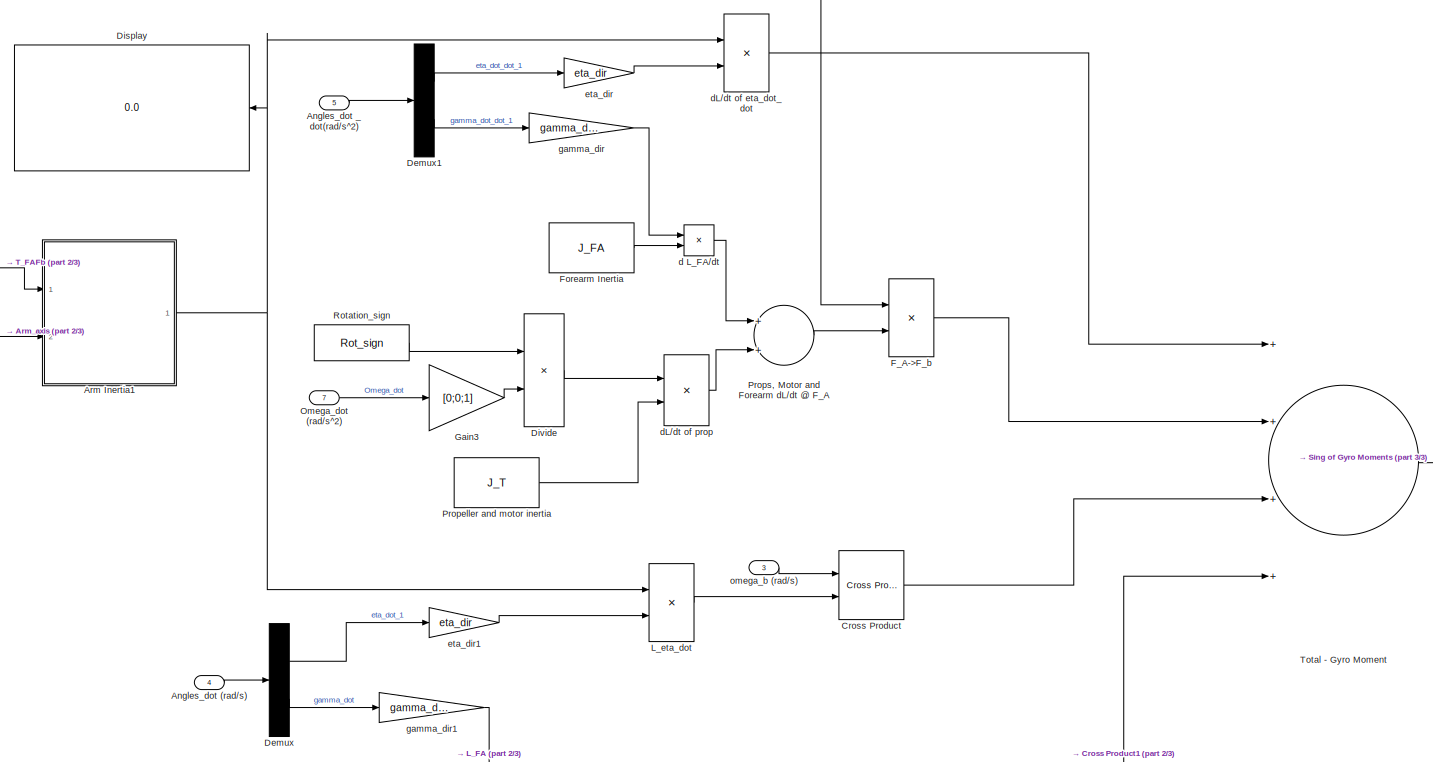
[diagram: Gyroscopic Moments - part 1/3, central region]
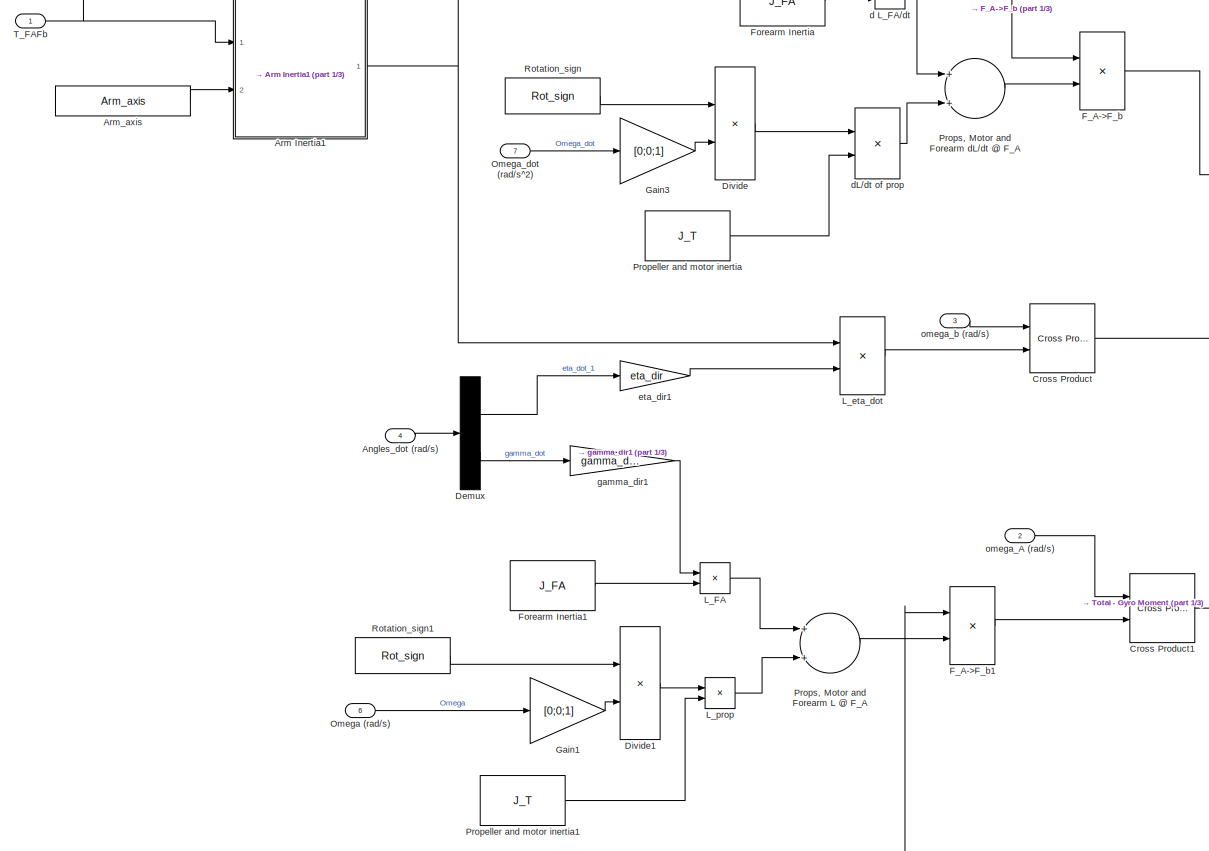
[diagram: Gyroscopic Moments - part 2/3, central region]
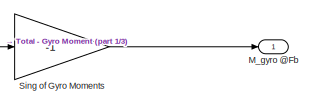
[diagram: Gyroscopic Moments - part 3/3, middle right region]
BLOCK [SubSystem] Gyroscopic Moments
  Ports = [7, 1]
  RequestExecContextInheritance = off
  TreatAsAtomicUnit = on
BLOCK [Inport] Gyroscopic Moments/Angles_dot (rad//s)
  IconDisplay = Port number
  Port = 4
BLOCK [Inport] Gyroscopic Moments/Angles_dot _dot(rad//s^2)
  IconDisplay = Port number
  Port = 5
BLOCK [SubSystem] Gyroscopic Moments/Arm Inertia1
  ErrorFcn = Stateflow.Translate.translate
  PermitHierarchicalResolution = ExplicitOnly
  Ports = [2, 1]
  RequestExecContextInheritance = off
  SFBlockType = MATLAB Function
  TreatAsAtomicUnit = on
BLOCK [Demux] Gyroscopic Moments/Arm Inertia1/ Demux 
  Outputs = 1
  Ports = [1, 1]
BLOCK [S-Function] Gyroscopic Moments/Arm Inertia1/ SFunction 
  FunctionName = sf_sfun
  Parameters = I_prop,I_tube,h,h_FA,h_M,m_FA,m_M,m_prop
  PortCounts = [2 2]
  Ports = [2, 2]
  Tag = Stateflow S-Function XXCopter 3
BLOCK [Terminator] Gyroscopic Moments/Arm Inertia1/ Terminator 
BLOCK [Inport] Gyroscopic Moments/Arm Inertia1/Arm_axis
  IconDisplay = Port number
  Port = 2
BLOCK [Outport] Gyroscopic Moments/Arm Inertia1/J_Arm
  IconDisplay = Port number
BLOCK [Inport] Gyroscopic Moments/Arm Inertia1/T_FAFb
  IconDisplay = Port number
BLOCK [Constant] Gyroscopic Moments/Arm_axis
  Value = Arm_axis
BLOCK [Reference] Gyroscopic Moments/Cross Product  REF=vrlib/Utilities/Cross Product
  Ports = [2, 1]
  SourceBlock = vrlib/Utilities/Cross Product
  SourceType = Cross Product
BLOCK [Reference] Gyroscopic Moments/Cross Product1  REF=vrlib/Utilities/Cross Product
  Ports = [2, 1]
  SourceBlock = vrlib/Utilities/Cross Product
  SourceType = Cross Product
BLOCK [Demux] Gyroscopic Moments/Demux
  DisplayOption = bar
  Outputs = 2
  Ports = [1, 2]
BLOCK [Demux] Gyroscopic Moments/Demux1
  DisplayOption = bar
  Outputs = 2
  Ports = [1, 2]
BLOCK [Display] Gyroscopic Moments/Display
  Decimation = 1
  Ports = [1]
BLOCK [Product] Gyroscopic Moments/Divide
  InputSameDT = off
  Inputs = **
  OutDataTypeStr = Inherit: Inherit via internal rule
  Ports = [2, 1]
  RndMeth = Floor
  SaturateOnIntegerOverflow = off
BLOCK [Product] Gyroscopic Moments/Divide1
  InputSameDT = off
  Inputs = **
  OutDataTypeStr = Inherit: Inherit via internal rule
  Ports = [2, 1]
  RndMeth = Floor
  SaturateOnIntegerOverflow = off
BLOCK [Product] Gyroscopic Moments/F_A->F_b
  InputSameDT = off
  Multiplication = Matrix(*)
  OutDataTypeStr = Inherit: Inherit via internal rule
  Ports = [2, 1]
  RndMeth = Floor
  SaturateOnIntegerOverflow = off
BLOCK [Product] Gyroscopic Moments/F_A->F_b1
  InputSameDT = off
  Multiplication = Matrix(*)
  OutDataTypeStr = Inherit: Inherit via internal rule
  Ports = [2, 1]
  RndMeth = Floor
  SaturateOnIntegerOverflow = off
BLOCK [Constant] Gyroscopic Moments/Forearm Inertia
  Value = J_FA
BLOCK [Constant] Gyroscopic Moments/Forearm Inertia1
  Value = J_FA
BLOCK [Gain] Gyroscopic Moments/Gain1
  Gain = [0;0;1]
  OutDataTypeStr = Inherit: Inherit via internal rule
  ParamDataTypeStr = Inherit: Inherit via internal rule
  SaturateOnIntegerOverflow = off
BLOCK [Gain] Gyroscopic Moments/Gain3
  Gain = [0;0;1]
  OutDataTypeStr = Inherit: Inherit via internal rule
  ParamDataTypeStr = Inherit: Inherit via internal rule
  SaturateOnIntegerOverflow = off
BLOCK [Product] Gyroscopic Moments/L_FA
  InputSameDT = off
  Inputs = **
  OutDataTypeStr = Inherit: Inherit via internal rule
  Ports = [2, 1]
  RndMeth = Floor
  SaturateOnIntegerOverflow = off
BLOCK [Product] Gyroscopic Moments/L_eta_dot
  InputSameDT = off
  Multiplication = Matrix(*)
  OutDataTypeStr = Inherit: Inherit via internal rule
  Ports = [2, 1]
  RndMeth = Floor
  SaturateOnIntegerOverflow = off
BLOCK [Product] Gyroscopic Moments/L_prop
  InputSameDT = off
  Inputs = **
  OutDataTypeStr = Inherit: Inherit via internal rule
  Ports = [2, 1]
  RndMeth = Floor
  SaturateOnIntegerOverflow = off
BLOCK [Outport] Gyroscopic Moments/M_gyro @Fb
  IconDisplay = Port number
BLOCK [Inport] Gyroscopic Moments/Omega (rad//s)
  IconDisplay = Port number
  Port = 6
BLOCK [Inport] Gyroscopic Moments/Omega_dot (rad//s^2)
  IconDisplay = Port number
  Port = 7
BLOCK [Constant] Gyroscopic Moments/Propeller and motor inertia
  Value = J_T
BLOCK [Constant] Gyroscopic Moments/Propeller and motor inertia1
  Value = J_T
BLOCK [Sum] Gyroscopic Moments/Props, Motor and Forearm L @ F_A
  InputSameDT = off
  OutDataTypeStr = Inherit: Inherit via internal rule
  Ports = [2, 1]
  SaturateOnIntegerOverflow = off
BLOCK [Sum] Gyroscopic Moments/Props, Motor and Forearm dL//dt @ F_A
  InputSameDT = off
  OutDataTypeStr = Inherit: Inherit via internal rule
  Ports = [2, 1]
  SaturateOnIntegerOverflow = off
BLOCK [Constant] Gyroscopic Moments/Rotation_sign
  Value = Rot_sign
BLOCK [Constant] Gyroscopic Moments/Rotation_sign1
  Value = Rot_sign
BLOCK [Gain] Gyroscopic Moments/Sing of Gyro Moments
  Gain = -1
  OutDataTypeStr = Inherit: Inherit via internal rule
  ParamDataTypeStr = Inherit: Inherit via internal rule
  SaturateOnIntegerOverflow = off
BLOCK [Inport] Gyroscopic Moments/T_FAFb
  IconDisplay = Port number
BLOCK [Sum] Gyroscopic Moments/Total - Gyro Moment
  InputSameDT = off
  Inputs = ++++
  OutDataTypeStr = Inherit: Inherit via internal rule
  Ports = [4, 1]
  SaturateOnIntegerOverflow = off
BLOCK [Product] Gyroscopic Moments/d L_FA//dt
  InputSameDT = off
  Inputs = **
  OutDataTypeStr = Inherit: Inherit via internal rule
  Ports = [2, 1]
  RndMeth = Floor
  SaturateOnIntegerOverflow = off
BLOCK [Product] Gyroscopic Moments/dL//dt of eta_dot_dot
  InputSameDT = off
  Multiplication = Matrix(*)
  OutDataTypeStr = Inherit: Inherit via internal rule
  Ports = [2, 1]
  RndMeth = Floor
  SaturateOnIntegerOverflow = off
BLOCK [Product] Gyroscopic Moments/dL//dt of prop
  InputSameDT = off
  Inputs = **
  OutDataTypeStr = Inherit: Inherit via internal rule
  Ports = [2, 1]
  RndMeth = Floor
  SaturateOnIntegerOverflow = off
BLOCK [Gain] Gyroscopic Moments/eta_dir
  Gain = eta_dir
  OutDataTypeStr = Inherit: Inherit via internal rule
  ParamDataTypeStr = Inherit: Inherit via internal rule
  SaturateOnIntegerOverflow = off
BLOCK [Gain] Gyroscopic Moments/eta_dir1
  Gain = eta_dir
  OutDataTypeStr = Inherit: Inherit via internal rule
  ParamDataTypeStr = Inherit: Inherit via internal rule
  SaturateOnIntegerOverflow = off
BLOCK [Gain] Gyroscopic Moments/gamma_dir
  Gain = gamma_dir
  OutDataTypeStr = Inherit: Inherit via internal rule
  ParamDataTypeStr = Inherit: Inherit via internal rule
  SaturateOnIntegerOverflow = off
BLOCK [Gain] Gyroscopic Moments/gamma_dir1
  Gain = gamma_dir
  OutDataTypeStr = Inherit: Inherit via internal rule
  ParamDataTypeStr = Inherit: Inherit via internal rule
  SaturateOnIntegerOverflow = off
BLOCK [Inport] Gyroscopic Moments/omega_A  (rad//s)
  IconDisplay = Port number
  Port = 2
BLOCK [Inport] Gyroscopic Moments/omega_b  (rad//s)
  IconDisplay = Port number
  Port = 3
BLOCK [SubSystem] Normalize 2D vector
  Ports = [1, 1]
  RequestExecContextInheritance = off
  TreatAsAtomicUnit = on
BLOCK [Reference] Normalize 2D vector/2D vec norm  REF=XXCopter/2D vec norm
  Ports = [1, 1]
  SourceBlock = XXCopter/2D vec norm
  SourceType = SubSystem
BLOCK [Bias] Normalize 2D vector/Bias
  Bias = eps
  SaturateOnIntegerOverflow = off
BLOCK [Demux] Normalize 2D vector/Demux
  DisplayOption = bar
  Outputs = 2
  Ports = [1, 2]
BLOCK [Math] Normalize 2D vector/Math Function
  Operator = reciprocal
  Ports = [1, 1]
BLOCK [Mux] Normalize 2D vector/Mux
  DisplayOption = bar
  Inputs = 2
  Ports = [2, 1]
BLOCK [Product] Normalize 2D vector/Product2
  InputSameDT = off
  Inputs = **
  OutDataTypeStr = Inherit: Inherit via internal rule
  Ports = [2, 1]
  RndMeth = Floor
  SaturateOnIntegerOverflow = off
BLOCK [Product] Normalize 2D vector/Product3
  InputSameDT = off
  Inputs = **
  OutDataTypeStr = Inherit: Inherit via internal rule
  Ports = [2, 1]
  RndMeth = Floor
  SaturateOnIntegerOverflow = off
BLOCK [Outport] Normalize 2D vector/normal(v)
  IconDisplay = Port number
BLOCK [Inport] Normalize 2D vector/v
  IconDisplay = Port number
BLOCK [SubSystem] Normalize 4D vector
  Ports = [1, 1]
  RequestExecContextInheritance = off
  TreatAsAtomicUnit = on
BLOCK [Reference] Normalize 4D vector/4D vec norm  REF=XXCopter/4D vec norm
  Ports = [1, 1]
  SourceBlock = XXCopter/4D vec norm
  SourceType = SubSystem
BLOCK [Bias] Normalize 4D vector/Bias
  Bias = eps
  SaturateOnIntegerOverflow = off
BLOCK [Demux] Normalize 4D vector/Demux
  DisplayOption = bar
  Ports = [1, 4]
BLOCK [Math] Normalize 4D vector/Math Function
  Operator = reciprocal
  Ports = [1, 1]
BLOCK [Mux] Normalize 4D vector/Mux
  DisplayOption = bar
  Ports = [4, 1]
BLOCK [Product] Normalize 4D vector/Product1
  InputSameDT = off
  Inputs = **
  OutDataTypeStr = Inherit: Inherit via internal rule
  Ports = [2, 1]
  RndMeth = Floor
  SaturateOnIntegerOverflow = off
BLOCK [Product] Normalize 4D vector/Product2
  InputSameDT = off
  Inputs = **
  OutDataTypeStr = Inherit: Inherit via internal rule
  Ports = [2, 1]
  RndMeth = Floor
  SaturateOnIntegerOverflow = off
BLOCK [Product] Normalize 4D vector/Product3
  InputSameDT = off
  Inputs = **
  OutDataTypeStr = Inherit: Inherit via internal rule
  Ports = [2, 1]
  RndMeth = Floor
  SaturateOnIntegerOverflow = off
BLOCK [Product] Normalize 4D vector/Product4
  InputSameDT = off
  Inputs = **
  OutDataTypeStr = Inherit: Inherit via internal rule
  Ports = [2, 1]
  RndMeth = Floor
  SaturateOnIntegerOverflow = off
BLOCK [Outport] Normalize 4D vector/normal(v)
  IconDisplay = Port number
BLOCK [Inport] Normalize 4D vector/v
  IconDisplay = Port number
BLOCK [SubSystem] Prop Coefficients
  ErrorFcn = Stateflow.Translate.translate
  PermitHierarchicalResolution = ExplicitOnly
  Ports = [2, 4]
  RequestExecContextInheritance = off
  SFBlockType = MATLAB Function
  TreatAsAtomicUnit = on
BLOCK [Demux] Prop Coefficients/ Demux 
  Outputs = 1
  Ports = [1, 1]
BLOCK [S-Function] Prop Coefficients/ SFunction 
  FunctionName = sf_sfun
  Parameters = C_d0,a,sigma,theta_0,theta_1
  PortCounts = [2 5]
  Ports = [2, 5]
  Tag = Stateflow S-Function XXCopter 17
BLOCK [Terminator] Prop Coefficients/ Terminator 
BLOCK [Outport] Prop Coefficients/C_H
  IconDisplay = Port number
  Port = 2
BLOCK [Outport] Prop Coefficients/C_MH
  IconDisplay = Port number
  Port = 3
BLOCK [Outport] Prop Coefficients/C_Q
  IconDisplay = Port number
  Port = 4
BLOCK [Outport] Prop Coefficients/C_T
  IconDisplay = Port number
BLOCK [Inport] Prop Coefficients/lambda
  IconDisplay = Port number
BLOCK [Inport] Prop Coefficients/mu
  IconDisplay = Port number
  Port = 2
BLOCK [SubSystem] Servos Dynamics
  Ports = [2, 3]
  RequestExecContextInheritance = off
  TreatAsAtomicUnit = on
BLOCK [Sum] Servos Dynamics/Add
  InputSameDT = off
  Inputs = +-
  OutDataTypeStr = Inherit: Inherit via internal rule
  Ports = [2, 1]
  SaturateOnIntegerOverflow = off
BLOCK [Sum] Servos Dynamics/Add1
  InputSameDT = off
  OutDataTypeStr = Inherit: Inherit via internal rule
  Ports = [2, 1]
  SaturateOnIntegerOverflow = off
BLOCK [Outport] Servos Dynamics/Angles Arms (rad)
  IconDisplay = Port number
BLOCK [Outport] Servos Dynamics/Angles_dot (rad//s)
  IconDisplay = Port number
  Port = 2
BLOCK [Outport] Servos Dynamics/Angles_dot_dot (rad//s^2)
  IconDisplay = Port number
  Port = 3
BLOCK [Inport] Servos Dynamics/Com Angles (rad)
  IconDisplay = Port number
BLOCK [Demux] Servos Dynamics/Demux
  DisplayOption = bar
  Outputs = 2
  Ports = [1, 2]
BLOCK [Derivative] Servos Dynamics/Derivative
  CoefficientInTFapproximation = derv_param
BLOCK [Derivative] Servos Dynamics/Derivative1
  CoefficientInTFapproximation = derv_param
BLOCK [Derivative] Servos Dynamics/Derivative2
  CoefficientInTFapproximation = derv_param
BLOCK [Derivative] Servos Dynamics/Derivative3
  CoefficientInTFapproximation = derv_param
BLOCK [Mux] Servos Dynamics/Mux
  DisplayOption = bar
  Inputs = 2
  Ports = [2, 1]
BLOCK [Mux] Servos Dynamics/Mux1
  DisplayOption = bar
  Inputs = 2
  Ports = [2, 1]
BLOCK [Mux] Servos Dynamics/Mux2
  DisplayOption = bar
  Inputs = 2
  Ports = [2, 1]
BLOCK [Mux] Servos Dynamics/Mux3
  DisplayOption = bar
  Inputs = 2
  Ports = [2, 1]
BLOCK [Mux] Servos Dynamics/Mux4
  DisplayOption = bar
  Inputs = 2
  Ports = [2, 1]
BLOCK [Quantizer] Servos Dynamics/Quantizer
  QuantizationInterval = deg2rad(0.05).*[1;1]
BLOCK [Terminator] Servos Dynamics/Terminator
BLOCK [Inport] Servos Dynamics/Torques?
  IconDisplay = Port number
  Port = 2
BLOCK [TransferFcn] Servos Dynamics/eta_1
  Denominator = [1 xi*omega_n omega_n^2]
  Numerator = omega_n^2
BLOCK [TransferFcn] Servos Dynamics/eta_2
  Denominator = [1 xi*omega_n omega_n^2]
  Numerator = omega_n^2
BLOCK [Constant] Servos Dynamics/init_eta
  Value = init_eta
BLOCK [Constant] Servos Dynamics/init_eta1
  Value = init_eta
BLOCK [Constant] Servos Dynamics/init_gamma
  Value = init_gamma
BLOCK [Constant] Servos Dynamics/init_gamma1
  Value = init_gamma
ANNOTATION Arm Dynamics: Motor-Propeller Coupling: Propeller Torque
ANNOTATION Arm Dynamics/Aerodynamics Propeller: Rotation_sign: * Anticlockwise from above rotation: Rotation_sign= -1 * Clockwise from above rotation: Rotation_sign= 1
NET 2D vec norm/norm^2rm/Demux:1 -> 2D vec norm/norm^2rm/Product:1, 2D vec norm/norm^2rm/Product:2
NET 2D vec norm/norm^2rm/Demux:2 -> 2D vec norm/norm^2rm/Product1:1, 2D vec norm/norm^2rm/Product1:2
LINE 2D vec norm/norm^2rm/Product1:1 -> 2D vec norm/norm^2rm/Sum:2
LINE 2D vec norm/norm^2rm/Product:1 -> 2D vec norm/norm^2rm/Sum:1
LINE 2D vec norm/norm^2rm/Sum:1 -> 2D vec norm/norm^2rm/norm(v):1
LINE 2D vec norm/norm^2rm/v:1 -> 2D vec norm/norm^2rm/Demux:1
LINE 2D vec norm/norm^2rm:1 -> 2D vec norm/sqrt:1
LINE 2D vec norm/sqrt:1 -> 2D vec norm/norm(v):1
LINE 2D vec norm/v:1 -> 2D vec norm/norm^2rm:1
NET 4D vec norm/norm^2rm/Demux:1 -> 4D vec norm/norm^2rm/Product:1, 4D vec norm/norm^2rm/Product:2
NET 4D vec norm/norm^2rm/Demux:2 -> 4D vec norm/norm^2rm/Product1:1, 4D vec norm/norm^2rm/Product1:2
NET 4D vec norm/norm^2rm/Demux:3 -> 4D vec norm/norm^2rm/Product2:1, 4D vec norm/norm^2rm/Product2:2
NET 4D vec norm/norm^2rm/Demux:4 -> 4D vec norm/norm^2rm/Product3:1, 4D vec norm/norm^2rm/Product3:2
LINE 4D vec norm/norm^2rm/Product1:1 -> 4D vec norm/norm^2rm/Sum:2
LINE 4D vec norm/norm^2rm/Product2:1 -> 4D vec norm/norm^2rm/Sum:3
LINE 4D vec norm/norm^2rm/Product3:1 -> 4D vec norm/norm^2rm/Sum:4
LINE 4D vec norm/norm^2rm/Product:1 -> 4D vec norm/norm^2rm/Sum:1
LINE 4D vec norm/norm^2rm/Sum:1 -> 4D vec norm/norm^2rm/norm(v):1
LINE 4D vec norm/norm^2rm/v:1 -> 4D vec norm/norm^2rm/Demux:1
LINE 4D vec norm/norm^2rm:1 -> 4D vec norm/sqrt:1
LINE 4D vec norm/sqrt:1 -> 4D vec norm/norm(v):1
LINE 4D vec norm/v:1 -> 4D vec norm/norm^2rm:1
LINE Aero Forces and Moments emb/Add:1 -> Aero Forces and Moments emb/Math Function1:1
LINE Aero Forces and Moments emb/C_H vec:1 -> Aero Forces and Moments emb/Mux:1
LINE Aero Forces and Moments emb/C_H:1 -> Aero Forces and Moments emb/C_H vec:1
LINE Aero Forces and Moments emb/C_MH sign:1 -> Aero Forces and Moments emb/Mh:2
LINE Aero Forces and Moments emb/C_MH:1 -> Aero Forces and Moments emb/C_MH sign:1
LINE Aero Forces and Moments emb/C_Q sign:1 -> Aero Forces and Moments emb/Mux1:2
LINE Aero Forces and Moments emb/C_Q:1 -> Aero Forces and Moments emb/C_Q sign:2
LINE Aero Forces and Moments emb/C_T Ground:1 -> Aero Forces and Moments emb/Gain1:1
LINE Aero Forces and Moments emb/C_T:1 -> Aero Forces and Moments emb/C_T Ground:1
LINE Aero Forces and Moments emb/Constant:1 -> Aero Forces and Moments emb/Add:1
NET Aero Forces and Moments emb/Divide:1 -> Aero Forces and Moments emb/omegaR2:2, Aero Forces and Moments emb/piR^2:2
LINE Aero Forces and Moments emb/F_p:1 -> Aero Forces and Moments emb/Fp:1
LINE Aero Forces and Moments emb/Gain1:1 -> Aero Forces and Moments emb/Mux:2
NET Aero Forces and Moments emb/Gain3:1 -> Aero Forces and Moments emb/C_H vec:2, Aero Forces and Moments emb/Mh:1
LINE Aero Forces and Moments emb/Gain:1 -> Aero Forces and Moments emb/Math Function:1
LINE Aero Forces and Moments emb/M_PM:1 -> Aero Forces and Moments emb/M_PM :1
LINE Aero Forces and Moments emb/Math Function1:1 -> Aero Forces and Moments emb/C_T Ground:2
LINE Aero Forces and Moments emb/Math Function:1 -> Aero Forces and Moments emb/omegaR2:1
LINE Aero Forces and Moments emb/Mh:1 -> Aero Forces and Moments emb/Mux1:1
NET Aero Forces and Moments emb/Moment_sign:1 -> Aero Forces and Moments emb/C_MH sign:2, Aero Forces and Moments emb/C_Q sign:1
LINE Aero Forces and Moments emb/Mux1:1 -> Aero Forces and Moments emb/M_PM:1
LINE Aero Forces and Moments emb/Mux:1 -> Aero Forces and Moments emb/F_p:1
LINE Aero Forces and Moments emb/Normalize 2D vector/2D vec norm:1 -> Aero Forces and Moments emb/Normalize 2D vector/Bias:1
LINE Aero Forces and Moments emb/Normalize 2D vector/Bias:1 -> Aero Forces and Moments emb/Normalize 2D vector/Math Function:1
LINE Aero Forces and Moments emb/Normalize 2D vector/Demux:1 -> Aero Forces and Moments emb/Normalize 2D vector/Product2:1
LINE Aero Forces and Moments emb/Normalize 2D vector/Demux:2 -> Aero Forces and Moments emb/Normalize 2D vector/Product3:1
NET Aero Forces and Moments emb/Normalize 2D vector/Math Function:1 -> Aero Forces and Moments emb/Normalize 2D vector/Product2:2, Aero Forces and Moments emb/Normalize 2D vector/Product3:2
LINE Aero Forces and Moments emb/Normalize 2D vector/Mux:1 -> Aero Forces and Moments emb/Normalize 2D vector/normal(v):1
LINE Aero Forces and Moments emb/Normalize 2D vector/Product2:1 -> Aero Forces and Moments emb/Normalize 2D vector/Mux:1
LINE Aero Forces and Moments emb/Normalize 2D vector/Product3:1 -> Aero Forces and Moments emb/Normalize 2D vector/Mux:2
NET Aero Forces and Moments emb/Normalize 2D vector/v:1 -> Aero Forces and Moments emb/Normalize 2D vector/2D vec norm:1, Aero Forces and Moments emb/Normalize 2D vector/Demux:1
LINE Aero Forces and Moments emb/Normalize 2D vector:1 -> Aero Forces and Moments emb/Gain3:1
LINE Aero Forces and Moments emb/Omega:1 -> Aero Forces and Moments emb/omegaR:1
NET Aero Forces and Moments emb/R:1 -> Aero Forces and Moments emb/Divide:1, Aero Forces and Moments emb/Divide:2, Aero Forces and Moments emb/omegaR:2, Aero Forces and Moments emb/rhoSR(OmegaR)^2:2
LINE Aero Forces and Moments emb/V_A:1 -> Aero Forces and Moments emb/V_A_x,y2:1
LINE Aero Forces and Moments emb/V_A_x,y2:1 -> Aero Forces and Moments emb/Normalize 2D vector:1
LINE Aero Forces and Moments emb/h^2:1 -> Aero Forces and Moments emb/Gain:1
NET Aero Forces and Moments emb/h_ground:1 -> Aero Forces and Moments emb/h^2:1, Aero Forces and Moments emb/h^2:2
LINE Aero Forces and Moments emb/omegaR1:1 -> Aero Forces and Moments emb/rhoS(OmegaR)^2:1
LINE Aero Forces and Moments emb/omegaR2:1 -> Aero Forces and Moments emb/Add:2
NET Aero Forces and Moments emb/omegaR:1 -> Aero Forces and Moments emb/omegaR^2:1, Aero Forces and Moments emb/omegaR^2:2
LINE Aero Forces and Moments emb/omegaR^2:1 -> Aero Forces and Moments emb/omegaR1:2
LINE Aero Forces and Moments emb/pi:1 -> Aero Forces and Moments emb/piR^2:1
LINE Aero Forces and Moments emb/piR^2:1 -> Aero Forces and Moments emb/rhoS(OmegaR)^2:2
LINE Aero Forces and Moments emb/rho:1 -> Aero Forces and Moments emb/omegaR1:1
NET Aero Forces and Moments emb/rhoS(OmegaR)^2:1 -> Aero Forces and Moments emb/F_p:2, Aero Forces and Moments emb/rhoSR(OmegaR)^2:1
LINE Aero Forces and Moments emb/rhoSR(OmegaR)^2:1 -> Aero Forces and Moments emb/M_PM:2
LINE Arm Dynamics/Aerodynamics Propeller/2D vec norm1:1 -> Arm Dynamics/Aerodynamics Propeller/mu:1
LINE Arm Dynamics/Aerodynamics Propeller/2D vec norm:1 -> Arm Dynamics/Aerodynamics Propeller/Vx dimless:1
LINE Arm Dynamics/Aerodynamics Propeller/Abs2:1 -> Arm Dynamics/Aerodynamics Propeller/Divide:1
LINE Arm Dynamics/Aerodynamics Propeller/Add:1 -> Arm Dynamics/Aerodynamics Propeller/Moments_prop @Fb:1
LINE Arm Dynamics/Aerodynamics Propeller/Aero Forces and Moments emb:1 -> Arm Dynamics/Aerodynamics Propeller/F prop @ Fb:2
NET Arm Dynamics/Aerodynamics Propeller/Aero Forces and Moments emb:2 -> Arm Dynamics/Aerodynamics Propeller/M prop @Fb:2, Arm Dynamics/Aerodynamics Propeller/Propeller Torque1:1
LINE Arm Dynamics/Aerodynamics Propeller/Dimensionless AB induced Vel Map:1 -> Arm Dynamics/Aerodynamics Propeller/v_i dimension:1
LINE Arm Dynamics/Aerodynamics Propeller/Divide:1 -> Arm Dynamics/Aerodynamics Propeller/Prop_Torque_out:1
NET Arm Dynamics/Aerodynamics Propeller/F prop @ Fb:1 -> Arm Dynamics/Aerodynamics Propeller/Forces_prop @Fb:1, Arm Dynamics/Aerodynamics Propeller/M_PAF:2
LINE Arm Dynamics/Aerodynamics Propeller/Gain1:1 -> Arm Dynamics/Aerodynamics Propeller/Vz dimless1:1
LINE Arm Dynamics/Aerodynamics Propeller/Gain:1 -> Arm Dynamics/Aerodynamics Propeller/lambdaZ:1
NET Arm Dynamics/Aerodynamics Propeller/Induced hover Vel:1 -> Arm Dynamics/Aerodynamics Propeller/Vx dimless:2, Arm Dynamics/Aerodynamics Propeller/Vz dimless1:2, Arm Dynamics/Aerodynamics Propeller/v_i dimension:2
LINE Arm Dynamics/Aerodynamics Propeller/M prop @Fb:1 -> Arm Dynamics/Aerodynamics Propeller/Add:2
LINE Arm Dynamics/Aerodynamics Propeller/M_PAF:1 -> Arm Dynamics/Aerodynamics Propeller/Add:1
NET Arm Dynamics/Aerodynamics Propeller/Omega*R:1 -> Arm Dynamics/Aerodynamics Propeller/lambdaZ:2, Arm Dynamics/Aerodynamics Propeller/lambda_i:2, Arm Dynamics/Aerodynamics Propeller/mu:2
NET Arm Dynamics/Aerodynamics Propeller/Omega:1 -> Arm Dynamics/Aerodynamics Propeller/Aero Forces and Moments emb:5, Arm Dynamics/Aerodynamics Propeller/Omega*R:2
LINE Arm Dynamics/Aerodynamics Propeller/Prop Coefficients:1 -> Arm Dynamics/Aerodynamics Propeller/Aero Forces and Moments emb:1
LINE Arm Dynamics/Aerodynamics Propeller/Prop Coefficients:2 -> Arm Dynamics/Aerodynamics Propeller/Aero Forces and Moments emb:2
LINE Arm Dynamics/Aerodynamics Propeller/Prop Coefficients:3 -> Arm Dynamics/Aerodynamics Propeller/Aero Forces and Moments emb:3
NET Arm Dynamics/Aerodynamics Propeller/Prop Coefficients:4 -> Arm Dynamics/Aerodynamics Propeller/Aero Forces and Moments emb:4, Arm Dynamics/Aerodynamics Propeller/Sign:1
LINE Arm Dynamics/Aerodynamics Propeller/Propeller Torque1:1 -> Arm Dynamics/Aerodynamics Propeller/Abs2:1
LINE Arm Dynamics/Aerodynamics Propeller/Radius Prop:1 -> Arm Dynamics/Aerodynamics Propeller/Omega*R:1
LINE Arm Dynamics/Aerodynamics Propeller/Reaction!:1 -> Arm Dynamics/Aerodynamics Propeller/Aero Forces and Moments emb:9
LINE Arm Dynamics/Aerodynamics Propeller/Rotation_sign:1 -> Arm Dynamics/Aerodynamics Propeller/Reaction!:1
LINE Arm Dynamics/Aerodynamics Propeller/Sign:1 -> Arm Dynamics/Aerodynamics Propeller/Divide:2
NET Arm Dynamics/Aerodynamics Propeller/T_FaFb:1 -> Arm Dynamics/Aerodynamics Propeller/F prop @ Fb:1, Arm Dynamics/Aerodynamics Propeller/M prop @Fb:1
NET Arm Dynamics/Aerodynamics Propeller/V^A:1 -> Arm Dynamics/Aerodynamics Propeller/Aero Forces and Moments emb:6, Arm Dynamics/Aerodynamics Propeller/V_A_x,y1:1, Arm Dynamics/Aerodynamics Propeller/V_A_x,y:1, Arm Dynamics/Aerodynamics Propeller/V_A_x:1, Arm Dynamics/Aerodynamics Propeller/V_A_z:1
LINE Arm Dynamics/Aerodynamics Propeller/V_A_x,y1:1 -> Arm Dynamics/Aerodynamics Propeller/Gain:1
LINE Arm Dynamics/Aerodynamics Propeller/V_A_x,y:1 -> Arm Dynamics/Aerodynamics Propeller/2D vec norm1:1
LINE Arm Dynamics/Aerodynamics Propeller/V_A_x:1 -> Arm Dynamics/Aerodynamics Propeller/2D vec norm:1
LINE Arm Dynamics/Aerodynamics Propeller/V_A_z:1 -> Arm Dynamics/Aerodynamics Propeller/Gain1:1
LINE Arm Dynamics/Aerodynamics Propeller/Vx dimless:1 -> Arm Dynamics/Aerodynamics Propeller/Dimensionless AB induced Vel Map:1
LINE Arm Dynamics/Aerodynamics Propeller/Vz dimless1:1 -> Arm Dynamics/Aerodynamics Propeller/Dimensionless AB induced Vel Map:2
LINE Arm Dynamics/Aerodynamics Propeller/h_ground:1 -> Arm Dynamics/Aerodynamics Propeller/Aero Forces and Moments emb:8
LINE Arm Dynamics/Aerodynamics Propeller/lambda:1 -> Arm Dynamics/Aerodynamics Propeller/Prop Coefficients:1
LINE Arm Dynamics/Aerodynamics Propeller/lambdaZ:1 -> Arm Dynamics/Aerodynamics Propeller/lambda:2
LINE Arm Dynamics/Aerodynamics Propeller/lambda_i:1 -> Arm Dynamics/Aerodynamics Propeller/lambda:1
LINE Arm Dynamics/Aerodynamics Propeller/mu:1 -> Arm Dynamics/Aerodynamics Propeller/Prop Coefficients:2
LINE Arm Dynamics/Aerodynamics Propeller/r_p:1 -> Arm Dynamics/Aerodynamics Propeller/M_PAF:1
LINE Arm Dynamics/Aerodynamics Propeller/rho:1 -> Arm Dynamics/Aerodynamics Propeller/Aero Forces and Moments emb:7
LINE Arm Dynamics/Aerodynamics Propeller/v_i dimension:1 -> Arm Dynamics/Aerodynamics Propeller/lambda_i:1
LINE Arm Dynamics/Aerodynamics Propeller:1 -> Arm Dynamics/Initial_torque:1
LINE Arm Dynamics/Aerodynamics Propeller:2 -> Arm Dynamics/Forces:1
LINE Arm Dynamics/Aerodynamics Propeller:3 -> Arm Dynamics/Total moments:1
NET Arm Dynamics/Arms Kinematics:1 -> Arm Dynamics/Aerodynamics Propeller:3, Arm Dynamics/Cross Product:2, Arm Dynamics/r_p:1
LINE Arm Dynamics/Arms Kinematics:2 -> Arm Dynamics/V^A (m//s):3
NET Arm Dynamics/Arms Kinematics:3 -> Arm Dynamics/Aerodynamics Propeller:5, Arm Dynamics/Gyroscopic Moments:1, Arm Dynamics/Permute Dimensions:1, Arm Dynamics/T_FaFb:1
LINE Arm Dynamics/Arms Kinematics:4 -> Arm Dynamics/omega_A:1
LINE Arm Dynamics/Comm Angles (rad):1 -> Arm Dynamics/Servos Dynamics:1
LINE Arm Dynamics/Cross Product:1 -> Arm Dynamics/V^A (m//s):2
NET Arm Dynamics/ESC+Motor Dynamcis:1 -> Arm Dynamics/Aerodynamics Propeller:1, Arm Dynamics/Gyroscopic Moments:6, Arm Dynamics/Omega_out:1, Arm Dynamics/initial_omega:1
NET Arm Dynamics/ESC+Motor Dynamcis:2 -> Arm Dynamics/Gyroscopic Moments:7, Arm Dynamics/Omega_dot_out:1
LINE Arm Dynamics/F_b->F_A:1 -> Arm Dynamics/Aerodynamics Propeller:4
LINE Arm Dynamics/Ground:1 -> Arm Dynamics/Servos Dynamics:2
LINE Arm Dynamics/Gyroscopic Moments:1 -> Arm Dynamics/Total moments:2
LINE Arm Dynamics/Initial_torque:1 -> Arm Dynamics/ESC+Motor Dynamcis:4
LINE Arm Dynamics/Omega_Initial:1 -> Arm Dynamics/ESC+Motor Dynamcis:3
LINE Arm Dynamics/Permute Dimensions:1 -> Arm Dynamics/F_b->F_A:1
NET Arm Dynamics/Servos Dynamics:1 -> Arm Dynamics/Angles (rad):1, Arm Dynamics/Arms Kinematics:1
NET Arm Dynamics/Servos Dynamics:2 -> Arm Dynamics/Arms Kinematics:2, Arm Dynamics/Gyroscopic Moments:4
LINE Arm Dynamics/Servos Dynamics:3 -> Arm Dynamics/Gyroscopic Moments:5
LINE Arm Dynamics/Throttle [0-1]:1 -> Arm Dynamics/ESC+Motor Dynamcis:1
LINE Arm Dynamics/Total moments:1 -> Arm Dynamics/Moments:1
LINE Arm Dynamics/V^A (m//s):1 -> Arm Dynamics/F_b->F_A:2
LINE Arm Dynamics/V_b:1 -> Arm Dynamics/V^A (m//s):1
LINE Arm Dynamics/h_ground:1 -> Arm Dynamics/Aerodynamics Propeller:2
LINE Arm Dynamics/initial_omega:1 -> Arm Dynamics/ESC+Motor Dynamcis:2
LINE Arm Dynamics/omega_A:1 -> Arm Dynamics/Gyroscopic Moments:2
NET Arm Dynamics/omega_b1:1 -> Arm Dynamics/Gyroscopic Moments:3, Arm Dynamics/omega_A:2
LINE Arm Dynamics/omega_b:1 -> Arm Dynamics/Cross Product:1
LINE Arms Kinematics/Add3:1 -> Arms Kinematics/r_p (m):1
NET Arms Kinematics/Add:1 -> Arms Kinematics/Cross Product:1, Arms Kinematics/omega_Ab (rad//s):1
LINE Arms Kinematics/Angles (rad):1 -> Arms Kinematics/Demux:1
LINE Arms Kinematics/Angles_dot (rad//s):1 -> Arms Kinematics/Demux3:1
LINE Arms Kinematics/Arm_no:1 -> Arms Kinematics/DCM Arm:1
LINE Arms Kinematics/Cross Product:1 -> Arms Kinematics/r_p_dot (m//s):1
LINE Arms Kinematics/DCM Arm:1 -> Arms Kinematics/Permute Dimensions:1
LINE Arms Kinematics/Demux3:1 -> Arms Kinematics/eta_dir:1
LINE Arms Kinematics/Demux3:2 -> Arms Kinematics/gamma_dir:1
LINE Arms Kinematics/Demux:1 -> Arms Kinematics/DCM Arm:2
LINE Arms Kinematics/Demux:2 -> Arms Kinematics/DCM Arm:3
NET Arms Kinematics/Fa->Fb:1 -> Arms Kinematics/Add3:2, Arms Kinematics/Cross Product:2
LINE Arms Kinematics/Gain7:1 -> Arms Kinematics/Fa->Fb:2
LINE Arms Kinematics/Hub_position:1 -> Arms Kinematics/Add3:1
LINE Arms Kinematics/Matrix Multiply:1 -> Arms Kinematics/Add:2
NET Arms Kinematics/Permute Dimensions:1 -> Arms Kinematics/Fa->Fb:1, Arms Kinematics/Matrix Multiply:1, Arms Kinematics/T_F_a,Fb:1
LINE Arms Kinematics/eta_dir:1 -> Arms Kinematics/Add:1
LINE Arms Kinematics/gamma_dir:1 -> Arms Kinematics/Matrix Multiply:2
LINE Arms Kinematics/h arm:1 -> Arms Kinematics/Gain7:1
LINE ESC+Motor Dynamcis/2-D Torque-Throttle-Omega Map:1 -> ESC+Motor Dynamcis/Add:1
NET ESC+Motor Dynamcis/Add1:1 -> ESC+Motor Dynamcis/Free Omega_dot:2, ESC+Motor Dynamcis/Saturation1:1, ESC+Motor Dynamcis/Sign:1
LINE ESC+Motor Dynamcis/Add:1 -> ESC+Motor Dynamcis/Forced Omega_dot:1
LINE ESC+Motor Dynamcis/Bias:1 -> ESC+Motor Dynamcis/Omega_out:1
LINE ESC+Motor Dynamcis/Correspondetn Omega_dot:1 -> ESC+Motor Dynamcis/Terminator:1
LINE ESC+Motor Dynamcis/Divide1:1 -> ESC+Motor Dynamcis/Multiport Switch:3
NET ESC+Motor Dynamcis/Forced Omega_dot:1 -> ESC+Motor Dynamcis/Correspondetn Omega_dot:3, ESC+Motor Dynamcis/Integrator:1, ESC+Motor Dynamcis/Memory4:1, ESC+Motor Dynamcis/Omega_dot_out:1
LINE ESC+Motor Dynamcis/Free Omega_dot:1 -> ESC+Motor Dynamcis/Unary Minus:1
NET ESC+Motor Dynamcis/Inertia of prop+motor:1 -> ESC+Motor Dynamcis/Divide1:1, ESC+Motor Dynamcis/Free Omega_dot:1
LINE ESC+Motor Dynamcis/Initial Omega:1 -> ESC+Motor Dynamcis/Integrator:2
LINE ESC+Motor Dynamcis/Integrator:1 -> ESC+Motor Dynamcis/Bias:1
LINE ESC+Motor Dynamcis/Memory4:1 -> ESC+Motor Dynamcis/Divide1:2
LINE ESC+Motor Dynamcis/Multiport Switch:1 -> ESC+Motor Dynamcis/Add1:2
LINE ESC+Motor Dynamcis/Omega:1 -> ESC+Motor Dynamcis/Add:2
LINE ESC+Motor Dynamcis/Prop Torque:1 -> ESC+Motor Dynamcis/Add1:1
LINE ESC+Motor Dynamcis/Saturation1:1 -> ESC+Motor Dynamcis/2-D Torque-Throttle-Omega Map:1
LINE ESC+Motor Dynamcis/Saturation:1 -> ESC+Motor Dynamcis/Correspondetn Omega_dot:1
LINE ESC+Motor Dynamcis/Sign:1 -> ESC+Motor Dynamcis/Saturation:1
LINE ESC+Motor Dynamcis/Throttle:1 -> ESC+Motor Dynamcis/2-D Torque-Throttle-Omega Map:2
LINE ESC+Motor Dynamcis/Time constant motors:1 -> ESC+Motor Dynamcis/Forced Omega_dot:2
LINE ESC+Motor Dynamcis/Unary Minus:1 -> ESC+Motor Dynamcis/Correspondetn Omega_dot:2
LINE ESC+Motor Dynamcis/inertia_switch:1 -> ESC+Motor Dynamcis/Multiport Switch:1
LINE ESC+Motor Dynamcis/null:1 -> ESC+Motor Dynamcis/Multiport Switch:2
LINE Ground  model/Ground model logic and Forces and moments:1 -> Ground  model/F_ground:1
LINE Ground  model/Ground model logic and Forces and moments:2 -> Ground  model/M_ground:1
LINE Ground  model/Vb:1 -> Ground  model/Ground model logic and Forces and moments:2
LINE Ground  model/Xe:1 -> Ground  model/Ground model logic and Forces and moments:1
LINE Ground  model/arm_hub position 1:1 -> Ground  model/Ground model logic and Forces and moments:6
LINE Ground  model/arm_hub position 2:1 -> Ground  model/Ground model logic and Forces and moments:7
LINE Ground  model/arm_hub position 3:1 -> Ground  model/Ground model logic and Forces and moments:8
LINE Ground  model/m:1 -> Ground  model/Ground model logic and Forces and moments:5
LINE Ground  model/omega_b:1 -> Ground  model/Ground model logic and Forces and moments:4
LINE Ground  model/q:1 -> Ground  model/Ground model logic and Forces and moments:3
LINE Gyroscopic Moments/Angles_dot (rad//s):1 -> Gyroscopic Moments/Demux:1
LINE Gyroscopic Moments/Angles_dot _dot(rad//s^2):1 -> Gyroscopic Moments/Demux1:1
NET Gyroscopic Moments/Arm Inertia1:1 -> Gyroscopic Moments/Display:1, Gyroscopic Moments/L_eta_dot:1, Gyroscopic Moments/dL//dt of eta_dot_dot:1
LINE Gyroscopic Moments/Arm_axis:1 -> Gyroscopic Moments/Arm Inertia1:2
LINE Gyroscopic Moments/Cross Product1:1 -> Gyroscopic Moments/Total - Gyro Moment:4
LINE Gyroscopic Moments/Cross Product:1 -> Gyroscopic Moments/Total - Gyro Moment:3
LINE Gyroscopic Moments/Demux1:1 -> Gyroscopic Moments/eta_dir:1
LINE Gyroscopic Moments/Demux1:2 -> Gyroscopic Moments/gamma_dir:1
LINE Gyroscopic Moments/Demux:1 -> Gyroscopic Moments/eta_dir1:1
LINE Gyroscopic Moments/Demux:2 -> Gyroscopic Moments/gamma_dir1:1
LINE Gyroscopic Moments/Divide1:1 -> Gyroscopic Moments/L_prop:1
LINE Gyroscopic Moments/Divide:1 -> Gyroscopic Moments/dL//dt of prop:1
LINE Gyroscopic Moments/F_A->F_b1:1 -> Gyroscopic Moments/Cross Product1:2
LINE Gyroscopic Moments/F_A->F_b:1 -> Gyroscopic Moments/Total - Gyro Moment:2
LINE Gyroscopic Moments/Forearm Inertia1:1 -> Gyroscopic Moments/L_FA:2
LINE Gyroscopic Moments/Forearm Inertia:1 -> Gyroscopic Moments/d L_FA//dt:2
LINE Gyroscopic Moments/Gain1:1 -> Gyroscopic Moments/Divide1:2
LINE Gyroscopic Moments/Gain3:1 -> Gyroscopic Moments/Divide:2
LINE Gyroscopic Moments/L_FA:1 -> Gyroscopic Moments/Props, Motor and Forearm L @ F_A:1
LINE Gyroscopic Moments/L_eta_dot:1 -> Gyroscopic Moments/Cross Product:2
LINE Gyroscopic Moments/L_prop:1 -> Gyroscopic Moments/Props, Motor and Forearm L @ F_A:2
LINE Gyroscopic Moments/Omega (rad//s):1 -> Gyroscopic Moments/Gain1:1
LINE Gyroscopic Moments/Omega_dot (rad//s^2):1 -> Gyroscopic Moments/Gain3:1
LINE Gyroscopic Moments/Propeller and motor inertia1:1 -> Gyroscopic Moments/L_prop:2
LINE Gyroscopic Moments/Propeller and motor inertia:1 -> Gyroscopic Moments/dL//dt of prop:2
LINE Gyroscopic Moments/Props, Motor and Forearm L @ F_A:1 -> Gyroscopic Moments/F_A->F_b1:2
LINE Gyroscopic Moments/Props, Motor and Forearm dL//dt @ F_A:1 -> Gyroscopic Moments/F_A->F_b:2
LINE Gyroscopic Moments/Rotation_sign1:1 -> Gyroscopic Moments/Divide1:1
LINE Gyroscopic Moments/Rotation_sign:1 -> Gyroscopic Moments/Divide:1
LINE Gyroscopic Moments/Sing of Gyro Moments:1 -> Gyroscopic Moments/M_gyro @Fb:1
NET Gyroscopic Moments/T_FAFb:1 -> Gyroscopic Moments/Arm Inertia1:1, Gyroscopic Moments/F_A->F_b1:1, Gyroscopic Moments/F_A->F_b:1
LINE Gyroscopic Moments/Total - Gyro Moment:1 -> Gyroscopic Moments/Sing of Gyro Moments:1
LINE Gyroscopic Moments/d L_FA//dt:1 -> Gyroscopic Moments/Props, Motor and Forearm dL//dt @ F_A:1
LINE Gyroscopic Moments/dL//dt of eta_dot_dot:1 -> Gyroscopic Moments/Total - Gyro Moment:1
LINE Gyroscopic Moments/dL//dt of prop:1 -> Gyroscopic Moments/Props, Motor and Forearm dL//dt @ F_A:2
LINE Gyroscopic Moments/eta_dir1:1 -> Gyroscopic Moments/L_eta_dot:2
LINE Gyroscopic Moments/eta_dir:1 -> Gyroscopic Moments/dL//dt of eta_dot_dot:2
LINE Gyroscopic Moments/gamma_dir1:1 -> Gyroscopic Moments/L_FA:1
LINE Gyroscopic Moments/gamma_dir:1 -> Gyroscopic Moments/d L_FA//dt:1
LINE Gyroscopic Moments/omega_A  (rad//s):1 -> Gyroscopic Moments/Cross Product1:1
LINE Gyroscopic Moments/omega_b  (rad//s):1 -> Gyroscopic Moments/Cross Product:1
LINE Normalize 2D vector/2D vec norm:1 -> Normalize 2D vector/Bias:1
LINE Normalize 2D vector/Bias:1 -> Normalize 2D vector/Math Function:1
LINE Normalize 2D vector/Demux:1 -> Normalize 2D vector/Product2:1
LINE Normalize 2D vector/Demux:2 -> Normalize 2D vector/Product3:1
NET Normalize 2D vector/Math Function:1 -> Normalize 2D vector/Product2:2, Normalize 2D vector/Product3:2
LINE Normalize 2D vector/Mux:1 -> Normalize 2D vector/normal(v):1
LINE Normalize 2D vector/Product2:1 -> Normalize 2D vector/Mux:1
LINE Normalize 2D vector/Product3:1 -> Normalize 2D vector/Mux:2
NET Normalize 2D vector/v:1 -> Normalize 2D vector/2D vec norm:1, Normalize 2D vector/Demux:1
LINE Normalize 4D vector/4D vec norm:1 -> Normalize 4D vector/Bias:1
LINE Normalize 4D vector/Bias:1 -> Normalize 4D vector/Math Function:1
LINE Normalize 4D vector/Demux:1 -> Normalize 4D vector/Product2:1
LINE Normalize 4D vector/Demux:2 -> Normalize 4D vector/Product3:1
LINE Normalize 4D vector/Demux:3 -> Normalize 4D vector/Product1:1
LINE Normalize 4D vector/Demux:4 -> Normalize 4D vector/Product4:1
NET Normalize 4D vector/Math Function:1 -> Normalize 4D vector/Product1:2, Normalize 4D vector/Product2:2, Normalize 4D vector/Product3:2, Normalize 4D vector/Product4:2
LINE Normalize 4D vector/Mux:1 -> Normalize 4D vector/normal(v):1
LINE Normalize 4D vector/Product1:1 -> Normalize 4D vector/Mux:3
LINE Normalize 4D vector/Product2:1 -> Normalize 4D vector/Mux:1
LINE Normalize 4D vector/Product3:1 -> Normalize 4D vector/Mux:2
LINE Normalize 4D vector/Product4:1 -> Normalize 4D vector/Mux:4
NET Normalize 4D vector/v:1 -> Normalize 4D vector/4D vec norm:1, Normalize 4D vector/Demux:1
LINE Servos Dynamics/Add1:1 -> Servos Dynamics/Quantizer:1
LINE Servos Dynamics/Add:1 -> Servos Dynamics/Demux:1
LINE Servos Dynamics/Com Angles (rad):1 -> Servos Dynamics/Add:1
LINE Servos Dynamics/Demux:1 -> Servos Dynamics/eta_1:1
LINE Servos Dynamics/Demux:2 -> Servos Dynamics/eta_2:1
NET Servos Dynamics/Derivative1:1 -> Servos Dynamics/Derivative3:1, Servos Dynamics/Mux1:2
LINE Servos Dynamics/Derivative2:1 -> Servos Dynamics/Mux2:1
LINE Servos Dynamics/Derivative3:1 -> Servos Dynamics/Mux2:2
NET Servos Dynamics/Derivative:1 -> Servos Dynamics/Derivative2:1, Servos Dynamics/Mux1:1
LINE Servos Dynamics/Mux1:1 -> Servos Dynamics/Angles_dot (rad//s):1
LINE Servos Dynamics/Mux2:1 -> Servos Dynamics/Angles_dot_dot (rad//s^2):1
LINE Servos Dynamics/Mux3:1 -> Servos Dynamics/Add:2
LINE Servos Dynamics/Mux4:1 -> Servos Dynamics/Add1:1
LINE Servos Dynamics/Mux:1 -> Servos Dynamics/Add1:2
LINE Servos Dynamics/Quantizer:1 -> Servos Dynamics/Angles Arms (rad):1
LINE Servos Dynamics/Torques?:1 -> Servos Dynamics/Terminator:1
NET Servos Dynamics/eta_1:1 -> Servos Dynamics/Derivative:1, Servos Dynamics/Mux:1
NET Servos Dynamics/eta_2:1 -> Servos Dynamics/Derivative1:1, Servos Dynamics/Mux:2
LINE Servos Dynamics/init_eta1:1 -> Servos Dynamics/Mux4:1
LINE Servos Dynamics/init_eta:1 -> Servos Dynamics/Mux3:1
LINE Servos Dynamics/init_gamma1:1 -> Servos Dynamics/Mux4:2
LINE Servos Dynamics/init_gamma:1 -> Servos Dynamics/Mux3:2
note: NET lines group one-source signal fan-out (src -> all destinations, sorted); 1:1 wires keep LINE
CHART Arm Dynamics/Aerodynamics Propeller/Prop Coefficients states=1 transitions=1
  STATE_LABEL 'eML_blk_kernel()'
  STATE_LABEL 'SCRIPT:\nfunction [C_T,C_H,C_MH,C_Q] = Aero_coeff(lambda,mu, sigma, C_d0, a, theta_0, theta_1)\n\nC_T = sigma*a/4*(theta_0*(2/3+mu^2) +theta_1/2*(1+mu^2) -  lambda );\nC_Q =    +sigma*a/4*( 2/3*theta_0 - lambda + theta_1/2)*lambda + sigma*C_d0/8*(1+mu^2);   % Always positive!!!\n\n\nC_H= sigma*a/4*mu*lambda*(theta_0+theta_1/2) + sigma*C_d0/4*mu; \nC_MH= sigma*a/4*( 2/3*theta_0*mu-1/2*lambda*mu+theta_1*mu/...<+8ch>'
CHART Gyroscopic Moments/Arm Inertia1 states=1 transitions=1
  STATE_LABEL 'eML_blk_kernel()'
  STATE_LABEL 'SCRIPT:\nfunction J_Arm  = Arm_inertia(T_FAFb,Arm_axis, I_tube, I_prop, h_FA, h_M, m_FA, m_M, m_prop, h)\n\n\nr_FAO=Arm_axis+T_FAFb*[0;0;-h_FA];\nr_MO=Arm_axis+T_FAFb*[0;0;-h_M];\nr_po=Arm_axis+T_FAFb*[0;0;-h];\n\nI_FA = m_FA*[ r_FAO(2)^2+r_FAO(3)^2,r_FAO(1)*r_FAO(2),r_FAO(1)*r_FAO(3);...\n            r_FAO(1)*r_FAO(2), r_FAO(1)^2+r_FAO(3)^2, r_FAO(2)*r_FAO(3);...\n            r_FAO(1)*r_FAO(3),r_FAO(2)*r_F...<+647ch>'
CHART Gravity Force and Moment states=1 transitions=1
  STATE_LABEL 'eML_blk_kernel()'
  STATE_LABEL 'SCRIPT:\nfunction [F_g_b,M_g_b]   = Grav_Forces_and_Mom( q,mass,CG, g)\n\nProd=HamiltonProduct([q(1);-q(2);-q(3);-q(4)],HamiltonProduct([0;0;0;mass*g],[q(1);q(2);q(3);q(4)]) ); % q* . g .q\n\nF_g_b= Prod(2:4);\nM_g_b=cross(CG,F_g_b);\n\nfunction Product= HamiltonProduct( a,b )\n\nProduct=[ a(1)*b(1)-a(2)*b(2)-a(3)*b(3)-a(4)*b(4) ; a(1)*b(2)+a(2)*b(1)+a(3)*b(4)-a(4)*b(3)  ; a(1)*b(3)-a(2)*b(4)+a(3)*b(1)+a(4)...<+53ch>'
CHART Aerodynamics body Force and Moment states=1 transitions=1
  STATE_LABEL 'eML_blk_kernel()'
  STATE_LABEL 'SCRIPT:\nfunction [F_a_b,M_a_b]   = Aero_body_Forces_and_Mom( V_b, rho,C_x,C_y,C_z,A_x,A_y,A_z)\n\n\nF_a_b=-1/2*rho*(norm(V_b)^2)*[C_x*A_x;C_y*A_y;C_z*A_z].*( V_b./(norm(V_b)+eps) );\nM_a_b=[0;0;0];\nend\n'
CHART Arms Kinematics/DCM Arm states=1 transitions=1
  STATE_LABEL 'eML_blk_kernel()'
  STATE_LABEL 'SCRIPT:\nfunction T_Fb_FA = DCM_Arm(arm_no,eta, gamma)\nif arm_no==1\n    T_Fb_FA = [ cos(gamma), sin(eta)*sin(gamma), -cos(eta)*sin(gamma);...\n            0,cos(eta),sin(eta);...\n            sin(gamma),-cos(gamma)*sin(eta),cos(gamma)*cos(eta) ];\nelseif arm_no==2 || arm_no==3\n    T_Fb_FA = [cos(eta),0,-sin(eta) ;...\n            sin(eta)*sin(gamma),cos(gamma),cos(eta)*sin(gamma);...\n            sin(et...<+108ch>'
CHART Aero Forces and Moments states=1 transitions=1
  STATE_LABEL 'eML_blk_kernel()'
  STATE_LABEL 'SCRIPT:\nfunction [F_p,M_PM] = Aero_Forces_and_Moments(C_T,C_H,C_MH,C_Q,Omega,V_A,h_ground,Moments_sign, R, rho)\n\n\n\nif V_A(1)==0 && V_A(2)==0\n    H=[0;0];\nelse\n    H=C_H*(-[V_A(1);V_A(2)])./norm([V_A(1);V_A(2)]);\nend\n%     C_T\n\nT_temp=1/(1-R^2/(16*h_ground^2))*C_T;\n\nF_p =   rho*pi*R^2*(Omega*R)^2*  [  H ; -T_temp ];\n% pause\n\n% Moments\n% %     Moments_sign=1; % Anticlockwise from above\n% %     Momen...<+288ch>'
CHART Prop Coefficients states=1 transitions=1
  STATE_LABEL 'eML_blk_kernel()'
  STATE_LABEL 'SCRIPT:\nfunction [C_T,C_H,C_MH,C_Q] = Aero_coeff(lambda,mu, sigma, C_d0, a, theta_0, theta_1)\n\nC_T = sigma*a/4*(theta_0*(2/3+mu^2) +theta_1/2*(1+mu^2) -  lambda );\nC_Q =    +sigma*a/4*( 2/3*theta_0 - lambda + theta_1/2)*lambda + sigma*C_d0/8*(1+mu^2);   % Always positive!!!\n\n\nC_H= sigma*a/4*mu*lambda*(theta_0+theta_1/2) + sigma*C_d0/4*mu; \nC_MH= sigma*a/4*( 2/3*theta_0*mu-1/2*lambda*mu+theta_1*mu/...<+8ch>'
CHART Ground  model/Ground model logic and Forces and moments states=1 transitions=1
  STATE_LABEL 'eML_blk_kernel()'
  STATE_LABEL 'SCRIPT:\nfunction [F_gr_b,M_gr_b]   = Gorund_Forces_and_Mom( Xe,Vb,q,omega_b,mass, g, Arm1,Arm2,Arm3)\n\nF_gr_b=zeros(3,1);\nM_gr_b=zeros(3,1);\n\n\n% Arm 1\nProd=HamiltonProduct([q(1);q(2);q(3);q(4)],HamiltonProduct([0;Arm1],[q(1);-q(2);-q(3);-q(4)]) ); % q . Arm .q*: From body to earth axes\nh_arm1 = Xe(3) + Prod(2:4);\n% Arm 2\nProd=HamiltonProduct([q(1);q(2);q(3);q(4)],HamiltonProduct([0;Arm2],[q(1);-q(2...<+1845ch>'
